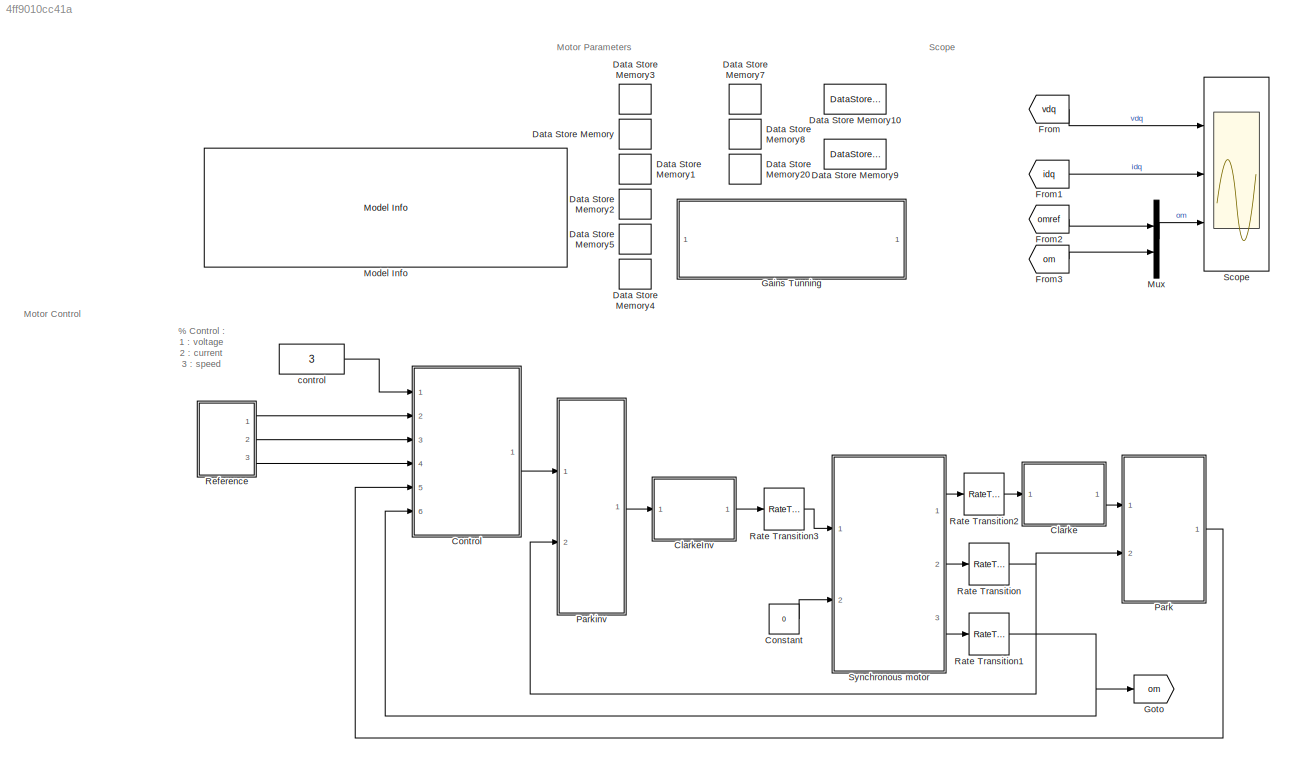
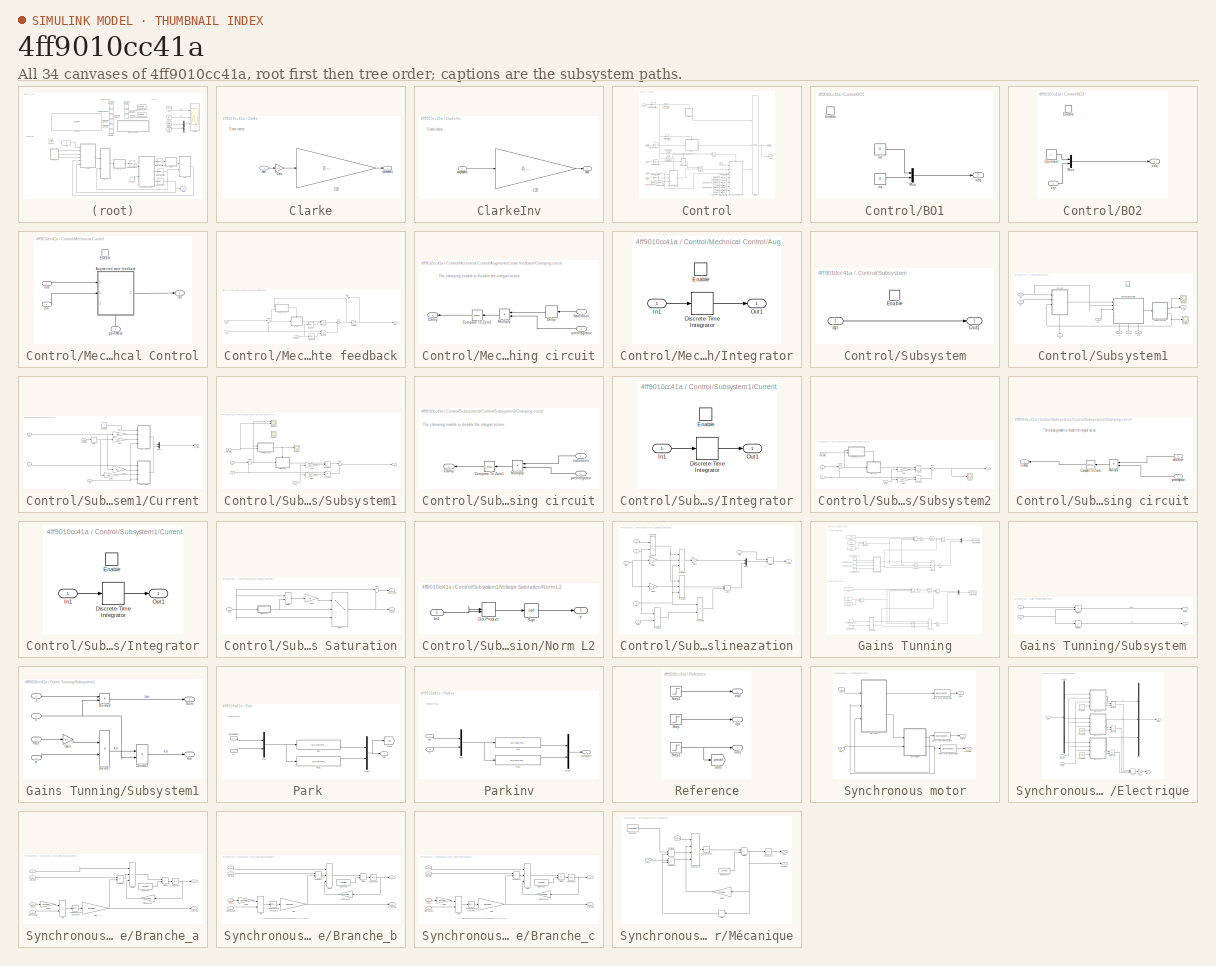
[diagram: thumbnail index - all 34 canvases of the model, root first then tree order]
MODEL slx_4ff9010cc41a
KIND model
CONFIG AbsTol = auto
CONFIG EnableMultiTasking = on
CONFIG FixedStep = 0.001
CONFIG MaxStep = 1e-4
CONFIG MinStep = auto
CONFIG RelTol = 1e-3
CONFIG SampleTimeConstraint = Unconstrained
CONFIG SolverName = ode45
CONFIG StartTime = 0.0
CONFIG StopTime = 10
BLOCK [SubSystem] Clarke
  Ports = [1, 1]
  RequestExecContextInheritance = off
BLOCK [Gain] Clarke/C23
  Gain = [1   -1/2        -1/2;\n        0   sqrt(3)/2   -sqrt(3)/2]
  Multiplication = Matrix(K*u)
BLOCK [Gain] Clarke/Gain
  Gain = 2/3
BLOCK [Inport] Clarke/xabc
BLOCK [Outport] Clarke/xalphabeta
  VectorParamsAs1DForOutWhenUnconnected = off
BLOCK [SubSystem] ClarkeInv
  Ports = [1, 1]
  RequestExecContextInheritance = off
BLOCK [Gain] ClarkeInv/C23'
  Gain = [1   -1/2        -1/2;\n        0   sqrt(3)/2   -sqrt(3)/2]'
  Multiplication = Matrix(K*u)
BLOCK [Outport] ClarkeInv/xabc
  VectorParamsAs1DForOutWhenUnconnected = off
BLOCK [Inport] ClarkeInv/xalphabeta
BLOCK [Constant] Constant
  Value = 0
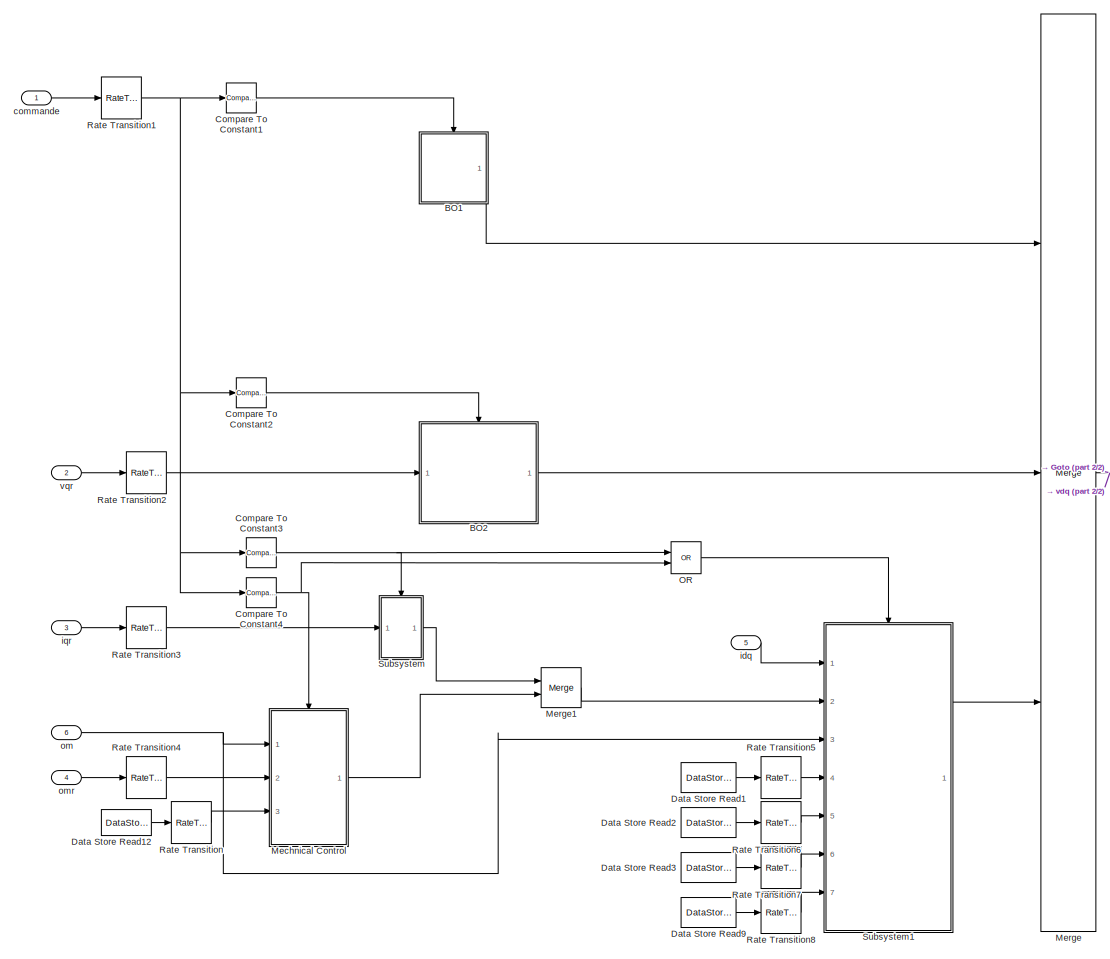
[diagram: Control - part 1/2, most of the canvas]
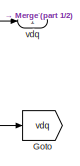
[diagram: Control - part 2/2, middle right region]
BLOCK [SubSystem] Control
  Ports = [6, 1]
  RequestExecContextInheritance = off
BLOCK [SubSystem] Control/BO1
  Ports = [0, 1, 1]
  RequestExecContextInheritance = off
BLOCK [EnablePort] Control/BO1/Enable
  Ports = []
BLOCK [Mux] Control/BO1/Mux
  DisplayOption = bar
  Inputs = 2
  Ports = [2, 1]
BLOCK [Constant] Control/BO1/vd
  OutDataTypeStr = single
  OutMax = [12]
  OutMin = [-12]
  Value = 0
BLOCK [Outport] Control/BO1/vdq
  VectorParamsAs1DForOutWhenUnconnected = off
BLOCK [Constant] Control/BO1/vq
  OutDataTypeStr = single
  OutMax = [12]
  OutMin = [-12]
  Value = 0
BLOCK [SubSystem] Control/BO2
  Ports = [1, 1, 1]
  RequestExecContextInheritance = off
BLOCK [Constant] Control/BO2/Constant
  OutDataTypeStr = single
  Value = 0
BLOCK [EnablePort] Control/BO2/Enable
  Ports = []
BLOCK [Mux] Control/BO2/Mux
  DisplayOption = bar
  Inputs = 2
  Ports = [2, 1]
BLOCK [Outport] Control/BO2/vdq
  VectorParamsAs1DForOutWhenUnconnected = off
BLOCK [Inport] Control/BO2/vqr
BLOCK [Reference] Control/Compare To Constant1  REF=simulink/Logic and Bit
Operations/Compare
To Constant
  Ports = [1, 1]
  SourceBlock = simulink/Logic and Bit\nOperations/Compare\nTo Constant
  SourceProductBaseCode = SL
  SourceType = Compare To Constant
BLOCK [Reference] Control/Compare To Constant2  REF=simulink/Logic and Bit
Operations/Compare
To Constant
  Ports = [1, 1]
  SourceBlock = simulink/Logic and Bit\nOperations/Compare\nTo Constant
  SourceProductBaseCode = SL
  SourceType = Compare To Constant
BLOCK [Reference] Control/Compare To Constant3  REF=simulink/Logic and Bit
Operations/Compare
To Constant
  Ports = [1, 1]
  SourceBlock = simulink/Logic and Bit\nOperations/Compare\nTo Constant
  SourceProductBaseCode = SL
  SourceType = Compare To Constant
BLOCK [Reference] Control/Compare To Constant4  REF=simulink/Logic and Bit
Operations/Compare
To Constant
  Ports = [1, 1]
  SourceBlock = simulink/Logic and Bit\nOperations/Compare\nTo Constant
  SourceProductBaseCode = SL
  SourceType = Compare To Constant
BLOCK [DataStoreRead] Control/Data Store Read1
  DataStoreName = L
  Ports = [0, 1]
  SampleTime = 1
BLOCK [DataStoreRead] Control/Data Store Read12
  DataStoreName = gainMeca
  Ports = [0, 1]
  SampleTime = 1
BLOCK [DataStoreRead] Control/Data Store Read2
  DataStoreName = Phif
  Ports = [0, 1]
  SampleTime = 1
BLOCK [DataStoreRead] Control/Data Store Read3
  DataStoreName = p
  Ports = [0, 1]
  SampleTime = 1
BLOCK [DataStoreRead] Control/Data Store Read9
  DataStoreName = gainElec
  Ports = [0, 1]
  SampleTime = 1
BLOCK [Goto] Control/Goto
  GotoTag = vdq
  TagVisibility = global
BLOCK [SubSystem] Control/Mechnical Control
  Ports = [3, 1, 1]
  RequestExecContextInheritance = off
BLOCK [SubSystem] Control/Mechnical Control/Augmented state feedback
  NameLocation = top
  PortSchema = {"entries":[{"content":{"sides":[{"content":{"connectorIds":["In1","In2"]},"type":"ConnectorPlacement.EquallySpacedRectSide","uuid":"89137e2f-cd18-4dcc-a524-9caf5367be1f"},{"content":{"connectorIds":["Out1"],"side":"RIGHT"},"type":"ConnectorPlacement.EquallySpacedRectSide","uuid":"4fa0fb61-d5d6-47b2-9e74-7b8a54a26f7d"},{"content":{"connectorIds":[],"side":"TOP"},"type":"ConnectorPlacement.EquallyS...<+539ch>
  Ports = [3, 1]
  RequestExecContextInheritance = off
BLOCK [SubSystem] Control/Mechnical Control/Augmented state feedback/Clamping circuit
  Ports = [2, 1]
  RequestExecContextInheritance = off
BLOCK [Outport] Control/Mechnical Control/Augmented state feedback/Clamping circuit/Clamp
  DisableCoverage = on
  VectorParamsAs1DForOutWhenUnconnected = off
BLOCK [Reference] Control/Mechnical Control/Augmented state feedback/Clamping circuit/Compare To Zero1  REF=simulink/Logic and Bit
Operations/Compare
To Zero
  NameLocation = top
  Ports = [1, 1]
  SourceBlock = simulink/Logic and Bit\nOperations/Compare\nTo Zero
  SourceProductBaseCode = SL
  SourceType = Compare To Zero
BLOCK [Delay] Control/Mechnical Control/Augmented state feedback/Clamping circuit/Delay
  DelayLength = 1
  InitialCondition = 0
  InputPortMap = u0
  NameLocation = top
  Ports = [1, 1]
BLOCK [Product] Control/Mechnical Control/Augmented state feedback/Clamping circuit/Multiply
  NameLocation = top
  Ports = [2, 1]
BLOCK [Inport] Control/Mechnical Control/Augmented state feedback/Clamping circuit/Saturation
  DisableCoverage = on
BLOCK [Inport] Control/Mechnical Control/Augmented state feedback/Clamping circuit/preIntegrator
  DisableCoverage = on
  Port = 2
  VarSizeSig = No
BLOCK [SubSystem] Control/Mechnical Control/Augmented state feedback/Integrator
  Ports = [1, 1, 1]
  RequestExecContextInheritance = off
BLOCK [DiscreteIntegrator] Control/Mechnical Control/Augmented state feedback/Integrator/Discrete-Time Integrator
  ICPrevOutput = DiscIntNeverNeededParam
  ICPrevScaledInput = DiscIntNeverNeededParam
  InitialConditionSetting = Auto
  OutDataTypeStr = single
  Ports = [1, 1]
  SampleTime = 1e-4
  SaturateOnIntegerOverflow = on
BLOCK [EnablePort] Control/Mechnical Control/Augmented state feedback/Integrator/Enable
  Ports = []
BLOCK [Inport] Control/Mechnical Control/Augmented state feedback/Integrator/In1
BLOCK [Outport] Control/Mechnical Control/Augmented state feedback/Integrator/Out1
  VectorParamsAs1DForOutWhenUnconnected = off
BLOCK [Product] Control/Mechnical Control/Augmented state feedback/Product
  Ports = [2, 1]
BLOCK [Product] Control/Mechnical Control/Augmented state feedback/Product1
  Ports = [2, 1]
BLOCK [Saturate] Control/Mechnical Control/Augmented state feedback/Saturation
  LowerLimit = -4
  UpperLimit = 4
BLOCK [Selector] Control/Mechnical Control/Augmented state feedback/Selector
  IndexOptions = Index vector (dialog)
  Indices = [2]
  InputPortWidth = 2
  OutputSizes = 1
  Ports = [1, 1]
BLOCK [Selector] Control/Mechnical Control/Augmented state feedback/Selector1
  IndexOptions = Index vector (dialog)
  Indices = 1
  InputPortWidth = 2
  OutputSizes = 1
  Ports = [1, 1]
BLOCK [Sum] Control/Mechnical Control/Augmented state feedback/Sum
  Inputs = |--
  OutDataTypeStr = single
  Ports = [2, 1]
  SaturateOnIntegerOverflow = on
BLOCK [Sum] Control/Mechnical Control/Augmented state feedback/Sum1
  Inputs = |+-
  Ports = [2, 1]
BLOCK [Sum] Control/Mechnical Control/Augmented state feedback/Sum2
  AccumDataTypeStr = Inherit: Same as first input
  Inputs = |-+
  NameLocation = top
  OutDataTypeStr = Inherit: Same as accumulator
  Ports = [2, 1]
  SaturateOnIntegerOverflow = on
BLOCK [Inport] Control/Mechnical Control/Augmented state feedback/gainMeca
  Port = 3
BLOCK [Outport] Control/Mechnical Control/Augmented state feedback/iqref
  VectorParamsAs1DForOutWhenUnconnected = off
BLOCK [Inport] Control/Mechnical Control/Augmented state feedback/om
  Port = 2
BLOCK [Inport] Control/Mechnical Control/Augmented state feedback/omref
BLOCK [EnablePort] Control/Mechnical Control/Enable
  Ports = []
  StatesWhenEnabling = reset
BLOCK [Inport] Control/Mechnical Control/gainMeca
  NameLocation = right
  Port = 3
BLOCK [Outport] Control/Mechnical Control/iqr
  VectorParamsAs1DForOutWhenUnconnected = off
BLOCK [Inport] Control/Mechnical Control/om
BLOCK [Inport] Control/Mechnical Control/omr
  Port = 2
BLOCK [Merge] Control/Merge
  Inputs = 3
  Ports = [3, 1]
BLOCK [Merge] Control/Merge1
  Ports = [2, 1]
BLOCK [Logic] Control/OR
  AllPortsSameDT = off
  IconShape = distinctive
  Operator = OR
  OutDataTypeStr = boolean
  Ports = [2, 1]
BLOCK [RateTransition] Control/Rate Transition
BLOCK [RateTransition] Control/Rate Transition1
BLOCK [RateTransition] Control/Rate Transition2
BLOCK [RateTransition] Control/Rate Transition3
BLOCK [RateTransition] Control/Rate Transition4
BLOCK [RateTransition] Control/Rate Transition5
BLOCK [RateTransition] Control/Rate Transition6
BLOCK [RateTransition] Control/Rate Transition7
BLOCK [RateTransition] Control/Rate Transition8
BLOCK [SubSystem] Control/Subsystem
  Ports = [1, 1, 1]
  RequestExecContextInheritance = off
BLOCK [EnablePort] Control/Subsystem/Enable
  Ports = []
BLOCK [Outport] Control/Subsystem/Out1
BLOCK [Inport] Control/Subsystem/iqr
BLOCK [SubSystem] Control/Subsystem1
  Ports = [7, 1, 1]
  RequestExecContextInheritance = off
BLOCK [SubSystem] Control/Subsystem1/Current
  NameLocation = top
  PortSchema = {"entries":[{"content":{"sides":[{"content":{"connectorIds":["In1","In2","In3"]},"type":"ConnectorPlacement.EquallySpacedRectSide","uuid":"0dd1bd5c-4f2d-4a51-9bc2-8bf74640d4ff"},{"content":{"connectorIds":["Out1"],"side":"RIGHT"},"type":"ConnectorPlacement.EquallySpacedRectSide","uuid":"9ff54608-efe8-47a2-97c0-1c2807ae0451"},{"content":{"connectorIds":[],"side":"TOP"},"type":"ConnectorPlacement.Eq...<+545ch>
  Ports = [4, 1]
  RequestExecContextInheritance = off
BLOCK [Constant] Control/Subsystem1/Current/Constant
  Value = 0
BLOCK [Delay] Control/Subsystem1/Current/Delay
  DelayLength = 1
  InputPortMap = u0
  Ports = [1, 1]
BLOCK [Gain] Control/Subsystem1/Current/Gain1
  Gain = [1 0]
  Multiplication = Matrix(K*u)
  OutDataTypeStr = Inherit: Same as input
BLOCK [Gain] Control/Subsystem1/Current/Gain2
  Gain = [0 1]
  Multiplication = Matrix(K*u)
  OutDataTypeStr = Inherit: Same as input
BLOCK [Gain] Control/Subsystem1/Current/Gain3
  Gain = [1 0]
  Multiplication = Matrix(K*u)
  OutDataTypeStr = Inherit: Same as input
BLOCK [Gain] Control/Subsystem1/Current/Gain4
  Gain = [0 1]
  Multiplication = Matrix(K*u)
  OutDataTypeStr = Inherit: Same as input
BLOCK [Inport] Control/Subsystem1/Current/Ke
  Port = 4
BLOCK [Mux] Control/Subsystem1/Current/Mux1
  DisplayOption = bar
  Inputs = 2
  Ports = [2, 1]
BLOCK [SubSystem] Control/Subsystem1/Current/Subsystem1
  Ports = [4, 1]
  RequestExecContextInheritance = off
BLOCK [SubSystem] Control/Subsystem1/Current/Subsystem1/Clamping circuit
  Ports = [2, 1]
  RequestExecContextInheritance = off
BLOCK [Outport] Control/Subsystem1/Current/Subsystem1/Clamping circuit/Clamp
  DisableCoverage = on
  VectorParamsAs1DForOutWhenUnconnected = off
BLOCK [Reference] Control/Subsystem1/Current/Subsystem1/Clamping circuit/Compare To Zero1  REF=simulink/Logic and Bit
Operations/Compare
To Zero
  NameLocation = top
  Ports = [1, 1]
  SourceBlock = simulink/Logic and Bit\nOperations/Compare\nTo Zero
  SourceProductBaseCode = SL
  SourceType = Compare To Zero
BLOCK [Product] Control/Subsystem1/Current/Subsystem1/Clamping circuit/Multiply
  NameLocation = top
  Ports = [2, 1]
BLOCK [Inport] Control/Subsystem1/Current/Subsystem1/Clamping circuit/preIntegrator
  DisableCoverage = on
  VarSizeSig = No
BLOCK [Inport] Control/Subsystem1/Current/Subsystem1/Clamping circuit/saturation
  DisableCoverage = on
  Port = 2
BLOCK [Gain] Control/Subsystem1/Current/Subsystem1/Gain
  Gain = [0 1]
  Multiplication = Matrix(K*u)
BLOCK [Gain] Control/Subsystem1/Current/Subsystem1/Gain1
  Gain = [1 0]
  Multiplication = Matrix(K*u)
BLOCK [SubSystem] Control/Subsystem1/Current/Subsystem1/Integrator
  Ports = [1, 1, 1]
  RequestExecContextInheritance = off
BLOCK [DiscreteIntegrator] Control/Subsystem1/Current/Subsystem1/Integrator/Discrete-Time Integrator
  ICPrevOutput = DiscIntNeverNeededParam
  ICPrevScaledInput = DiscIntNeverNeededParam
  InitialConditionSetting = Auto
  OutDataTypeStr = single
  Ports = [1, 1]
  SampleTime = 1e-4
BLOCK [EnablePort] Control/Subsystem1/Current/Subsystem1/Integrator/Enable
  Ports = []
BLOCK [Inport] Control/Subsystem1/Current/Subsystem1/Integrator/In1
BLOCK [Outport] Control/Subsystem1/Current/Subsystem1/Integrator/Out1
  VectorParamsAs1DForOutWhenUnconnected = off
BLOCK [Inport] Control/Subsystem1/Current/Subsystem1/K_e
  Port = 4
BLOCK [Product] Control/Subsystem1/Current/Subsystem1/Product
  Ports = [2, 1]
BLOCK [Product] Control/Subsystem1/Current/Subsystem1/Product1
  Ports = [2, 1]
BLOCK [Scope] Control/Subsystem1/Current/Subsystem1/Scope
  Floating = off
  NumInputPorts = 1
  Ports = [1]
  ScopeSpecificationString = Simulink.scopes.TimeScopeBlockCfg('CurrentConfiguration', extmgr.ConfigurationSet(extmgr.Configuration('Core','General UI',true),extmgr.Configuration('Core','Source UI',true),extmgr.Configuration('Sources','WiredSimulink',true,'DataLoggingVariableName','ScopeData5'),extmgr.Configuration('Visuals','Time Domain',true,'SerializedDisplays',{struct('MinYLimReal','-0.125','MaxYLimReal','1.125','YLabelRe...<+1391ch>
BLOCK [Scope] Control/Subsystem1/Current/Subsystem1/Scope1
  Floating = off
  NumInputPorts = 2
  Ports = [2]
  ScopeSpecificationString = Simulink.scopes.TimeScopeBlockCfg('CurrentConfiguration', extmgr.ConfigurationSet(extmgr.Configuration('Core','General UI',true),extmgr.Configuration('Core','Source UI',true),extmgr.Configuration('Sources','WiredSimulink',true,'DataLoggingVariableName','ScopeData3'),extmgr.Configuration('Visuals','Time Domain',true,'SerializedDisplays',{struct('MinYLimReal','-0.125','MaxYLimReal','1.125','YLabelRe...<+1394ch>
BLOCK [Scope] Control/Subsystem1/Current/Subsystem1/Scope2
  Floating = off
  NumInputPorts = 1
  Ports = [1]
  ScopeSpecificationString = Simulink.scopes.TimeScopeBlockCfg('CurrentConfiguration', extmgr.ConfigurationSet(extmgr.Configuration('Core','General UI',true),extmgr.Configuration('Core','Source UI',true),extmgr.Configuration('Sources','WiredSimulink',true,'DataLoggingVariableName','ScopeData4'),extmgr.Configuration('Visuals','Time Domain',true,'SerializedDisplays',{struct('MinYLimReal','-1.00000','MaxYLimReal','1.00000','YLab...<+1432ch>
BLOCK [Sum] Control/Subsystem1/Current/Subsystem1/Sum
  Inputs = |--
  OutDataTypeStr = single
  Ports = [2, 1]
  SaturateOnIntegerOverflow = on
BLOCK [Sum] Control/Subsystem1/Current/Subsystem1/Sum3
  Inputs = |+-
  Ports = [2, 1]
BLOCK [Inport] Control/Subsystem1/Current/Subsystem1/i
  Port = 2
BLOCK [Inport] Control/Subsystem1/Current/Subsystem1/iref
BLOCK [Inport] Control/Subsystem1/Current/Subsystem1/saturation
  Port = 3
BLOCK [Outport] Control/Subsystem1/Current/Subsystem1/v
  VectorParamsAs1DForOutWhenUnconnected = off
BLOCK [SubSystem] Control/Subsystem1/Current/Subsystem2
  Ports = [4, 1]
  RequestExecContextInheritance = off
BLOCK [SubSystem] Control/Subsystem1/Current/Subsystem2/Clamping circuit
  Ports = [2, 1]
  RequestExecContextInheritance = off
BLOCK [Outport] Control/Subsystem1/Current/Subsystem2/Clamping circuit/Clamp
  DisableCoverage = on
  VectorParamsAs1DForOutWhenUnconnected = off
BLOCK [Reference] Control/Subsystem1/Current/Subsystem2/Clamping circuit/Compare To Zero1  REF=simulink/Logic and Bit
Operations/Compare
To Zero
  NameLocation = top
  Ports = [1, 1]
  SourceBlock = simulink/Logic and Bit\nOperations/Compare\nTo Zero
  SourceProductBaseCode = SL
  SourceType = Compare To Zero
BLOCK [Product] Control/Subsystem1/Current/Subsystem2/Clamping circuit/Multiply
  NameLocation = top
  Ports = [2, 1]
BLOCK [Inport] Control/Subsystem1/Current/Subsystem2/Clamping circuit/preIntegrator
  DisableCoverage = on
  VarSizeSig = No
BLOCK [Inport] Control/Subsystem1/Current/Subsystem2/Clamping circuit/saturation
  DisableCoverage = on
  Port = 2
BLOCK [Gain] Control/Subsystem1/Current/Subsystem2/Gain
  Gain = [0 1]
  Multiplication = Matrix(K*u)
BLOCK [Gain] Control/Subsystem1/Current/Subsystem2/Gain1
  Gain = [1 0]
  Multiplication = Matrix(K*u)
BLOCK [SubSystem] Control/Subsystem1/Current/Subsystem2/Integrator
  Ports = [1, 1, 1]
  RequestExecContextInheritance = off
BLOCK [DiscreteIntegrator] Control/Subsystem1/Current/Subsystem2/Integrator/Discrete-Time Integrator
  ICPrevOutput = DiscIntNeverNeededParam
  ICPrevScaledInput = DiscIntNeverNeededParam
  InitialConditionSetting = Auto
  OutDataTypeStr = single
  Ports = [1, 1]
  SampleTime = 1e-4
BLOCK [EnablePort] Control/Subsystem1/Current/Subsystem2/Integrator/Enable
  Ports = []
BLOCK [Inport] Control/Subsystem1/Current/Subsystem2/Integrator/In1
BLOCK [Outport] Control/Subsystem1/Current/Subsystem2/Integrator/Out1
  VectorParamsAs1DForOutWhenUnconnected = off
BLOCK [Inport] Control/Subsystem1/Current/Subsystem2/K_e
  Port = 4
BLOCK [Product] Control/Subsystem1/Current/Subsystem2/Product
  Ports = [2, 1]
BLOCK [Product] Control/Subsystem1/Current/Subsystem2/Product1
  Ports = [2, 1]
BLOCK [Scope] Control/Subsystem1/Current/Subsystem2/Scope
  Floating = off
  NumInputPorts = 1
  Ports = [1]
  ScopeSpecificationString = Simulink.scopes.TimeScopeBlockCfg('CurrentConfiguration', extmgr.ConfigurationSet(extmgr.Configuration('Core','General UI',true),extmgr.Configuration('Core','Source UI',true),extmgr.Configuration('Sources','WiredSimulink',true,'DataLoggingVariableName','ScopeData2'),extmgr.Configuration('Visuals','Time Domain',true,'SerializedDisplays',{struct('MinYLimReal','-2.81143','MaxYLimReal','9.99619','YLab...<+1362ch>
BLOCK [Sum] Control/Subsystem1/Current/Subsystem2/Sum
  Inputs = |--
  OutDataTypeStr = single
  Ports = [2, 1]
  SaturateOnIntegerOverflow = on
BLOCK [Sum] Control/Subsystem1/Current/Subsystem2/Sum3
  Inputs = |+-
  Ports = [2, 1]
BLOCK [Inport] Control/Subsystem1/Current/Subsystem2/i
  Port = 2
BLOCK [Inport] Control/Subsystem1/Current/Subsystem2/iref
BLOCK [Inport] Control/Subsystem1/Current/Subsystem2/saturation
  Port = 3
BLOCK [Outport] Control/Subsystem1/Current/Subsystem2/v
  VectorParamsAs1DForOutWhenUnconnected = off
BLOCK [Inport] Control/Subsystem1/Current/idq
BLOCK [Inport] Control/Subsystem1/Current/iqr
  Port = 2
BLOCK [Inport] Control/Subsystem1/Current/saturation
  Port = 3
BLOCK [Outport] Control/Subsystem1/Current/v_dq
  VectorParamsAs1DForOutWhenUnconnected = off
BLOCK [EnablePort] Control/Subsystem1/Enable
  Ports = []
  StatesWhenEnabling = reset
BLOCK [Inport] Control/Subsystem1/Ke
  NameLocation = right
  Port = 7
BLOCK [Inport] Control/Subsystem1/L
  NameLocation = right
  Port = 4
BLOCK [Inport] Control/Subsystem1/Phif
  NameLocation = right
  Port = 5
BLOCK [Scope] Control/Subsystem1/Scope
  Floating = off
  NumInputPorts = 1
  Ports = [1]
  ScopeSpecificationString = Simulink.scopes.TimeScopeBlockCfg('CurrentConfiguration', extmgr.ConfigurationSet(extmgr.Configuration('Core','General UI',true),extmgr.Configuration('Core','Source UI',true),extmgr.Configuration('Sources','WiredSimulink',true,'DataLoggingVariableName','ScopeData3'),extmgr.Configuration('Visuals','Time Domain',true,'SerializedDisplays',{struct('MinYLimReal','-0.02877','MaxYLimReal','0.25896','YLab...<+1435ch>
BLOCK [Scope] Control/Subsystem1/Scope1
  Floating = off
  NumInputPorts = 1
  Ports = [1]
  ScopeSpecificationString = Simulink.scopes.TimeScopeBlockCfg('CurrentConfiguration', extmgr.ConfigurationSet(extmgr.Configuration('Core','General UI',true),extmgr.Configuration('Core','Source UI',true),extmgr.Configuration('Sources','WiredSimulink',true,'DataLoggingVariableName','ScopeData4'),extmgr.Configuration('Visuals','Time Domain',true,'SerializedDisplays',{struct('MinYLimReal','-1.09402','MaxYLimReal','6.46965','YLab...<+1461ch>
BLOCK [SubSystem] Control/Subsystem1/Voltage Saturation
  Ports = [1, 2]
  RequestExecContextInheritance = off
BLOCK [Product] Control/Subsystem1/Voltage Saturation/Divide
  Inputs = */
  Ports = [2, 1]
BLOCK [Gain] Control/Subsystem1/Voltage Saturation/Gain
  Gain = 12
BLOCK [SubSystem] Control/Subsystem1/Voltage Saturation/Norm L2
  Ports = [1, 1]
  RequestExecContextInheritance = off
BLOCK [DotProduct] Control/Subsystem1/Voltage Saturation/Norm L2/Dot Product
  OutDataTypeStr = Inherit: Inherit via internal rule
BLOCK [Inport] Control/Subsystem1/Voltage Saturation/Norm L2/In1
BLOCK [Sqrt] Control/Subsystem1/Voltage Saturation/Norm L2/Sqrt
BLOCK [Outport] Control/Subsystem1/Voltage Saturation/Norm L2/y
BLOCK [Sum] Control/Subsystem1/Voltage Saturation/Sum
  Inputs = |+-
  Ports = [2, 1]
BLOCK [Switch] Control/Subsystem1/Voltage Saturation/Switch
  Criteria = u2 > Threshold
  InputSameDT = off
  SaturateOnIntegerOverflow = off
  Threshold = 12
BLOCK [Outport] Control/Subsystem1/Voltage Saturation/saturation
  Port = 2
  VectorParamsAs1DForOutWhenUnconnected = off
BLOCK [Inport] Control/Subsystem1/Voltage Saturation/vdq
BLOCK [Outport] Control/Subsystem1/Voltage Saturation/vdqsat
  VectorParamsAs1DForOutWhenUnconnected = off
BLOCK [SubSystem] Control/Subsystem1/feedback lineazation
  NameLocation = top
  PortSchema = {"entries":[{"content":{"sides":[{"content":{"connectorIds":["In1","In2","In3"]},"type":"ConnectorPlacement.EquallySpacedRectSide","uuid":"169b5321-ee7c-423e-8449-192a786c9798"},{"content":{"connectorIds":["Out1"],"side":"RIGHT"},"type":"ConnectorPlacement.EquallySpacedRectSide","uuid":"910fdd05-0903-4759-8f85-a6669ffcf15d"},{"content":{"connectorIds":[],"side":"TOP"},"type":"ConnectorPlacement.Eq...<+557ch>
  Ports = [6, 1]
  RequestExecContextInheritance = off
BLOCK [Sum] Control/Subsystem1/feedback lineazation/Add6
  IconShape = rectangular
  Ports = [2, 1]
BLOCK [Sum] Control/Subsystem1/feedback lineazation/Add7
  IconShape = rectangular
  Ports = [2, 1]
BLOCK [Gain] Control/Subsystem1/feedback lineazation/Gain1
  Gain = -1
BLOCK [Gain] Control/Subsystem1/feedback lineazation/Gain2
  Gain = [1 0]
  Multiplication = Matrix(K*u)
BLOCK [Gain] Control/Subsystem1/feedback lineazation/Gain3
  Gain = [0 1]
  Multiplication = Matrix(K*u)
BLOCK [Inport] Control/Subsystem1/feedback lineazation/L
  Port = 5
BLOCK [Mux] Control/Subsystem1/feedback lineazation/Mux2
  DisplayOption = bar
  Inputs = 2
  Ports = [2, 1]
BLOCK [Inport] Control/Subsystem1/feedback lineazation/Phif
  Port = 6
BLOCK [Product] Control/Subsystem1/feedback lineazation/Product2
  Ports = [2, 1]
BLOCK [Product] Control/Subsystem1/feedback lineazation/Product3
  Ports = [2, 1]
BLOCK [Product] Control/Subsystem1/feedback lineazation/Product7
  Inputs = 3
  Ports = [3, 1]
BLOCK [Product] Control/Subsystem1/feedback lineazation/Product8
  Ports = [2, 1]
BLOCK [Product] Control/Subsystem1/feedback lineazation/Product9
  Inputs = 3
  Ports = [3, 1]
BLOCK [Inport] Control/Subsystem1/feedback lineazation/idq
  NameLocation = top
  Port = 2
BLOCK [Inport] Control/Subsystem1/feedback lineazation/om
  Port = 3
BLOCK [Inport] Control/Subsystem1/feedback lineazation/p
  Port = 4
BLOCK [Inport] Control/Subsystem1/feedback lineazation/udq
BLOCK [Outport] Control/Subsystem1/feedback lineazation/v_dq
  VectorParamsAs1DForOutWhenUnconnected = off
BLOCK [Inport] Control/Subsystem1/idq
BLOCK [Inport] Control/Subsystem1/iqr
  Port = 2
BLOCK [Inport] Control/Subsystem1/om
  Port = 3
BLOCK [Inport] Control/Subsystem1/p
  NameLocation = right
  Port = 6
BLOCK [Outport] Control/Subsystem1/v_dq
BLOCK [Inport] Control/commande
BLOCK [Inport] Control/idq
  Port = 5
BLOCK [Inport] Control/iqr
  Port = 3
BLOCK [Inport] Control/om
  Port = 6
BLOCK [Inport] Control/omr
  Port = 4
BLOCK [Outport] Control/vdq
  VectorParamsAs1DForOutWhenUnconnected = off
BLOCK [Inport] Control/vqr
  Port = 2
BLOCK [DataStoreMemory] Data Store Memory
  DataStoreName = R
  InitialValue = 0.656
  OutDataTypeStr = single
  ReadBeforeWriteMsg = warning
  ShowAdditionalParam = off
  WriteAfterReadMsg = warning
  WriteAfterWriteMsg = warning
BLOCK [DataStoreMemory] Data Store Memory1
  DataStoreName = L
  InitialValue = 0.35e-3
  OutDataTypeStr = single
  ReadBeforeWriteMsg = warning
  ShowAdditionalParam = off
  WriteAfterReadMsg = warning
  WriteAfterWriteMsg = warning
BLOCK [DataStoreMemory] Data Store Memory10
  DataStoreName = gainElec
  InitialValue = [0;0]
  OutDataTypeStr = single
  ReadBeforeWriteMsg = warning
  ShowAdditionalParam = off
  WriteAfterReadMsg = warning
  WriteAfterWriteMsg = warning
BLOCK [DataStoreMemory] Data Store Memory2
  DataStoreName = Phif
  InitialValue = 0.0066
  OutDataTypeStr = single
  ReadBeforeWriteMsg = warning
  ShowAdditionalParam = off
  WriteAfterReadMsg = warning
  WriteAfterWriteMsg = warning
BLOCK [DataStoreMemory] Data Store Memory20
  DataStoreName = IMAX
  InitialValue = 4
  OutDataTypeStr = int16
  ReadBeforeWriteMsg = warning
  ShowAdditionalParam = off
  WriteAfterReadMsg = warning
  WriteAfterWriteMsg = warning
BLOCK [DataStoreMemory] Data Store Memory3
  DataStoreName = p
  InitialValue = 4
  OutDataTypeStr = int16
  ReadBeforeWriteMsg = warning
  ShowAdditionalParam = off
  WriteAfterReadMsg = warning
  WriteAfterWriteMsg = warning
BLOCK [DataStoreMemory] Data Store Memory4
  DataStoreName = F
  InitialValue = 1.0e-05
  OutDataTypeStr = single
  ReadBeforeWriteMsg = warning
  ShowAdditionalParam = off
  WriteAfterReadMsg = warning
  WriteAfterWriteMsg = warning
BLOCK [DataStoreMemory] Data Store Memory5
  DataStoreName = J
  InitialValue = 1.0e-05
  OutDataTypeStr = single
  ReadBeforeWriteMsg = warning
  ShowAdditionalParam = off
  WriteAfterReadMsg = warning
  WriteAfterWriteMsg = warning
BLOCK [DataStoreMemory] Data Store Memory7
  DataStoreName = VDC
  InitialValue = 24
  OutDataTypeStr = fixdt(1,16)
  OutMax = [30]
  OutMin = [-30]
  ReadBeforeWriteMsg = warning
  ShowAdditionalParam = off
  WriteAfterReadMsg = warning
  WriteAfterWriteMsg = warning
BLOCK [DataStoreMemory] Data Store Memory8
  DataStoreName = VMAX
  InitialValue = 12
  OutDataTypeStr = fixdt(1,16)
  OutMax = [30]
  OutMin = [-30]
  ReadBeforeWriteMsg = warning
  ShowAdditionalParam = off
  WriteAfterReadMsg = warning
  WriteAfterWriteMsg = warning
BLOCK [DataStoreMemory] Data Store Memory9
  DataStoreName = gainMeca
  InitialValue = [0;0]
  OutDataTypeStr = single
  ReadBeforeWriteMsg = warning
  ShowAdditionalParam = off
  WriteAfterReadMsg = warning
  WriteAfterWriteMsg = warning
BLOCK [From] From
  GotoTag = vdq
  TagVisibility = global
BLOCK [From] From1
  GotoTag = idq
  TagVisibility = global
BLOCK [From] From2
  GotoTag = omref
  TagVisibility = global
BLOCK [From] From3
  GotoTag = om
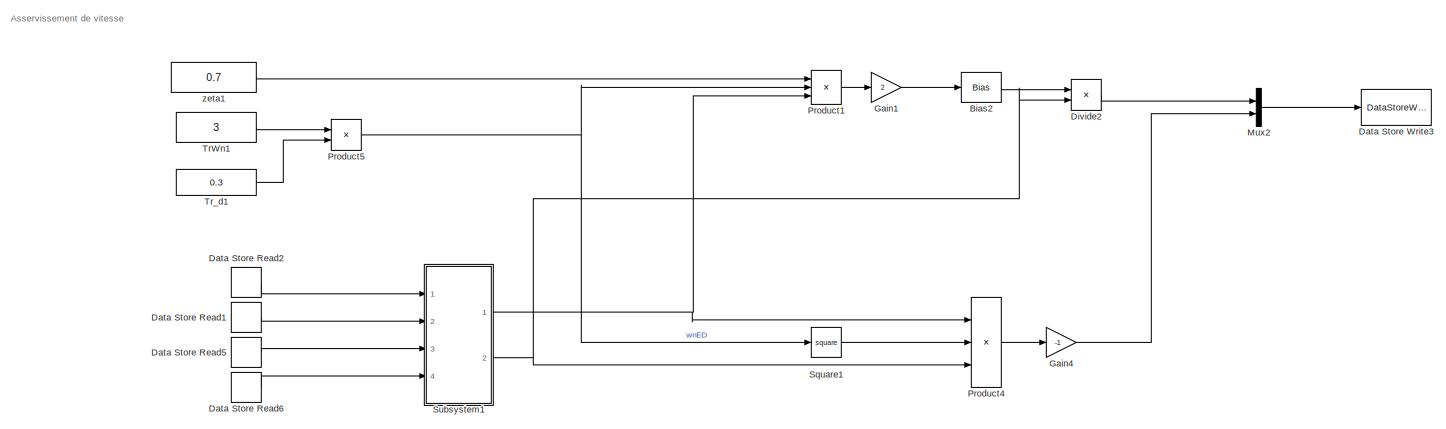
[diagram: Gains Tunning - part 1/2, full width, top band]
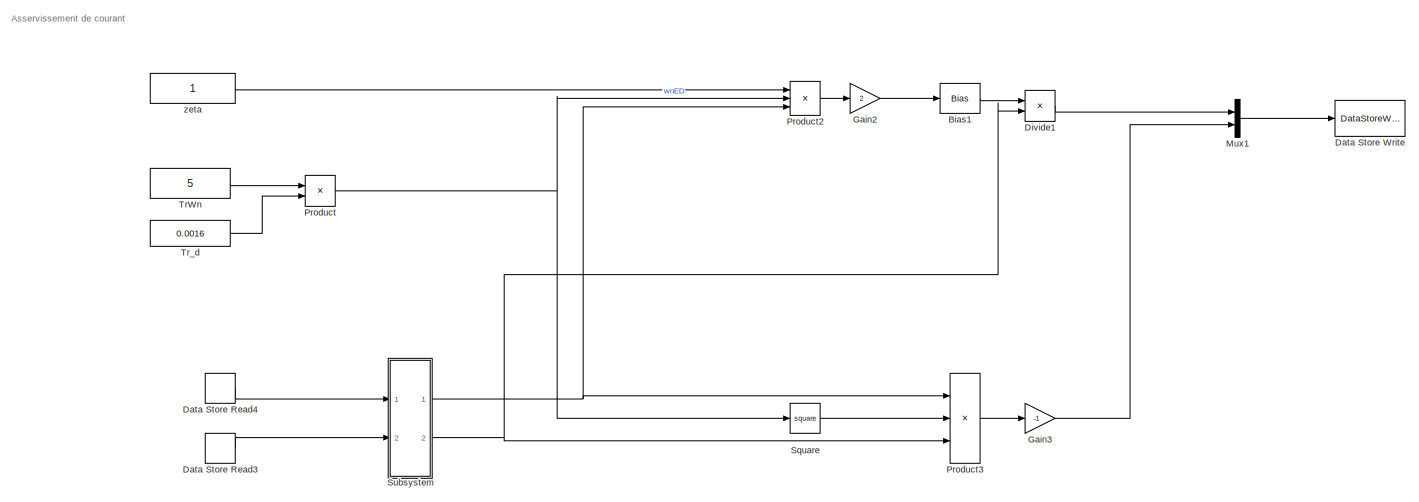
[diagram: Gains Tunning - part 2/2, full width, bottom band]
BLOCK [SubSystem] Gains Tunning
  Ports = []
  RequestExecContextInheritance = off
BLOCK [Bias] Gains Tunning/Bias1
  Bias = -1
  SaturateOnIntegerOverflow = off
BLOCK [Bias] Gains Tunning/Bias2
  Bias = -1
  SaturateOnIntegerOverflow = off
BLOCK [DataStoreRead] Gains Tunning/Data Store Read1
  DataStoreName = F
  Ports = [0, 1]
  SampleTime = 1
BLOCK [DataStoreRead] Gains Tunning/Data Store Read2
  DataStoreName = J
  Ports = [0, 1]
  SampleTime = 1
BLOCK [DataStoreRead] Gains Tunning/Data Store Read3
  DataStoreName = R
  Ports = [0, 1]
  SampleTime = 1
BLOCK [DataStoreRead] Gains Tunning/Data Store Read4
  DataStoreName = L
  Ports = [0, 1]
  SampleTime = 1
BLOCK [DataStoreRead] Gains Tunning/Data Store Read5
  DataStoreName = Phif
  Ports = [0, 1]
  SampleTime = 1
BLOCK [DataStoreRead] Gains Tunning/Data Store Read6
  DataStoreName = p
  Ports = [0, 1]
  SampleTime = 1
BLOCK [DataStoreWrite] Gains Tunning/Data Store Write
  DataStoreName = gainElec
  Ports = [1]
  SampleTime = 1
BLOCK [DataStoreWrite] Gains Tunning/Data Store Write3
  DataStoreName = gainMeca
  Ports = [1]
BLOCK [Product] Gains Tunning/Divide1
  Inputs = */
  Ports = [2, 1]
BLOCK [Product] Gains Tunning/Divide2
  Inputs = */
  Ports = [2, 1]
BLOCK [Gain] Gains Tunning/Gain1
  Gain = 2
BLOCK [Gain] Gains Tunning/Gain2
  Gain = 2
BLOCK [Gain] Gains Tunning/Gain3
  Gain = -1
BLOCK [Gain] Gains Tunning/Gain4
  Gain = -1
BLOCK [Mux] Gains Tunning/Mux1
  DisplayOption = bar
  Inputs = 2
  Ports = [2, 1]
BLOCK [Mux] Gains Tunning/Mux2
  DisplayOption = bar
  Inputs = 2
  Ports = [2, 1]
BLOCK [Product] Gains Tunning/Product
  Inputs = */
  Ports = [2, 1]
BLOCK [Product] Gains Tunning/Product1
  Inputs = 3
  Ports = [3, 1]
BLOCK [Product] Gains Tunning/Product2
  Inputs = 3
  Ports = [3, 1]
BLOCK [Product] Gains Tunning/Product3
  Inputs = **/
  Ports = [3, 1]
BLOCK [Product] Gains Tunning/Product4
  Inputs = **/
  Ports = [3, 1]
BLOCK [Product] Gains Tunning/Product5
  Inputs = */
  Ports = [2, 1]
BLOCK [Math] Gains Tunning/Square
  Operator = square
  Ports = [1, 1]
BLOCK [Math] Gains Tunning/Square1
  Operator = square
  Ports = [1, 1]
BLOCK [SubSystem] Gains Tunning/Subsystem
  Ports = [2, 2]
  RequestExecContextInheritance = off
BLOCK [Product] Gains Tunning/Subsystem/Divide1
  Inputs = /
  Ports = [1, 1]
BLOCK [Product] Gains Tunning/Subsystem/Divide2
  Inputs = */
  Ports = [2, 1]
BLOCK [Inport] Gains Tunning/Subsystem/L
BLOCK [Inport] Gains Tunning/Subsystem/R
  Port = 2
BLOCK [Outport] Gains Tunning/Subsystem/kE
  Port = 2
BLOCK [Outport] Gains Tunning/Subsystem/tauE
BLOCK [SubSystem] Gains Tunning/Subsystem1
  Ports = [4, 2]
  RequestExecContextInheritance = off
BLOCK [Product] Gains Tunning/Subsystem1/Divide3
  Inputs = */
  Ports = [2, 1]
BLOCK [Product] Gains Tunning/Subsystem1/Divide6
  Inputs = */
  Ports = [2, 1]
BLOCK [Product] Gains Tunning/Subsystem1/Divide7
  Inputs = **
  Ports = [2, 1]
BLOCK [Inport] Gains Tunning/Subsystem1/F
  Port = 2
BLOCK [Gain] Gains Tunning/Subsystem1/Gain
  Gain = 3/2
BLOCK [Inport] Gains Tunning/Subsystem1/J
BLOCK [Outport] Gains Tunning/Subsystem1/Km
  Port = 2
BLOCK [Inport] Gains Tunning/Subsystem1/Phif
  Port = 3
BLOCK [Inport] Gains Tunning/Subsystem1/p
  Port = 4
BLOCK [Outport] Gains Tunning/Subsystem1/taum
BLOCK [Constant] Gains Tunning/TrWn
  OutDataTypeStr = single
  Value = 5
BLOCK [Constant] Gains Tunning/TrWn1
  OutDataTypeStr = single
  Value = 3
BLOCK [Constant] Gains Tunning/Tr_d
  OutDataTypeStr = single
  Value = 0.0016
BLOCK [Constant] Gains Tunning/Tr_d1
  OutDataTypeStr = single
  Value = 0.3
BLOCK [Constant] Gains Tunning/zeta
  OutDataTypeStr = single
BLOCK [Constant] Gains Tunning/zeta1
  OutDataTypeStr = single
  Value = 0.7
BLOCK [Goto] Goto
  GotoTag = om
BLOCK [Reference] Model Info  REF=simulink/Model-Wide
Utilities/Model Info
  Ports = []
  SourceBlock = simulink/Model-Wide\nUtilities/Model Info
  SourceProductBaseCode = SL
  SourceType = CMBlock
BLOCK [Mux] Mux
  DisplayOption = bar
  Inputs = 2
  Ports = [2, 1]
BLOCK [SubSystem] Park 
  Ports = [2, 1]
  RequestExecContextInheritance = off
BLOCK [Fcn] Park /Fcn
  Expr = u(1)*cos(4*u(3))+u(2)*sin(4*u(3))
BLOCK [Fcn] Park /Fcn1
  Expr = -u(1)*sin(4*u(3))+u(2)*cos(4*u(3))
BLOCK [Goto] Park /Goto
  GotoTag = idq
  TagVisibility = global
BLOCK [Mux] Park /Mux
  DisplayOption = bar
  Inputs = 2
  Ports = [2, 1]
BLOCK [Mux] Park /Mux1
  DisplayOption = bar
  Inputs = 2
  Ports = [2, 1]
BLOCK [Inport] Park /th
  Port = 2
BLOCK [Inport] Park /xalphabeta
BLOCK [Outport] Park /xdq
  VectorParamsAs1DForOutWhenUnconnected = off
BLOCK [SubSystem] Parkinv
  Ports = [2, 1]
  RequestExecContextInheritance = off
BLOCK [Fcn] Parkinv/Fcn
  Expr = u(1)*cos(4*u(3))-u(2)*sin(4*u(3))
BLOCK [Fcn] Parkinv/Fcn1
  Expr = u(1)*sin(4*u(3))+u(2)*cos(4*u(3))
BLOCK [Mux] Parkinv/Mux
  DisplayOption = bar
  Inputs = 2
  Ports = [2, 1]
BLOCK [Mux] Parkinv/Mux1
  DisplayOption = bar
  Inputs = 2
  Ports = [2, 1]
BLOCK [Inport] Parkinv/th
  Port = 2
BLOCK [Outport] Parkinv/xalphabeta
  VectorParamsAs1DForOutWhenUnconnected = off
BLOCK [Inport] Parkinv/xdq
BLOCK [RateTransition] Rate Transition
  OutPortSampleTime = 1e-4
BLOCK [RateTransition] Rate Transition1
  OutPortSampleTime = 1e-4
BLOCK [RateTransition] Rate Transition2
  OutPortSampleTime = 1e-4
BLOCK [RateTransition] Rate Transition3
  OutPortSampleTime = 1e-4
BLOCK [SubSystem] Reference
  Ports = [0, 3]
  RequestExecContextInheritance = off
BLOCK [Goto] Reference/Goto
  GotoTag = omref
  TagVisibility = global
BLOCK [Step] Reference/Step
  After = 2
  OutDataTypeStr = single
  SampleTime = 0
  Time = 2
BLOCK [Step] Reference/Step1
  After = 300
  OutDataTypeStr = single
  SampleTime = 0
  Time = 2
BLOCK [Step] Reference/Step2
  After = 5
  OutDataTypeStr = single
  SampleTime = 0
  Time = 2
BLOCK [Outport] Reference/iq#
  Port = 2
  VectorParamsAs1DForOutWhenUnconnected = off
BLOCK [Outport] Reference/om#
  Port = 3
  VectorParamsAs1DForOutWhenUnconnected = off
BLOCK [Outport] Reference/vq#
  VectorParamsAs1DForOutWhenUnconnected = off
BLOCK [Scope] Scope
  Floating = off
  NumInputPorts = 3
  Ports = [3]
  ScopeSpecificationString = Simulink.scopes.TimeScopeBlockCfg('CurrentConfiguration', extmgr.ConfigurationSet(extmgr.Configuration('Core','General UI',true,'FigureColor',[1 1 1]),extmgr.Configuration('Core','Source UI',true),extmgr.Configuration('Sources','WiredSimulink',true,'DataLoggingVariableName','ScopeData1'),extmgr.Configuration('Visuals','Time Domain',true,'SerializedDisplays',{struct('MinYLimReal','-1.84468','MaxYLi...<+3228ch>
BLOCK [SubSystem] Synchronous motor
  Ports = [2, 3]
  RequestExecContextInheritance = off
BLOCK [DataTypeConversion] Synchronous motor/Data Type Conversion
  OutDataTypeStr = single
  RndMeth = Floor
  SaturateOnIntegerOverflow = off
BLOCK [DataTypeConversion] Synchronous motor/Data Type Conversion1
  OutDataTypeStr = single
  RndMeth = Floor
  SaturateOnIntegerOverflow = off
BLOCK [DataTypeConversion] Synchronous motor/Data Type Conversion2
  OutDataTypeStr = single
  RndMeth = Floor
  SaturateOnIntegerOverflow = off
BLOCK [SubSystem] Synchronous motor/Electrique
  Ports = [3, 2]
  RequestExecContextInheritance = off
BLOCK [Sum] Synchronous motor/Electrique/Add
  IconShape = rectangular
  Inputs = +++
  Ports = [3, 1]
BLOCK [SubSystem] Synchronous motor/Electrique/Branche_a
  Ports = [4, 2]
  RequestExecContextInheritance = off
BLOCK [Sum] Synchronous motor/Electrique/Branche_a/Add
  IconShape = rectangular
  Ports = [2, 1]
BLOCK [Sum] Synchronous motor/Electrique/Branche_a/Add1
  IconShape = rectangular
  Inputs = ++-
  Ports = [3, 1]
BLOCK [Constant] Synchronous motor/Electrique/Branche_a/Constant
  Value = Lmodel
BLOCK [Product] Synchronous motor/Electrique/Branche_a/Divide
  Inputs = */
  Ports = [2, 1]
BLOCK [Inport] Synchronous motor/Electrique/Branche_a/Déphasage
  Port = 4
BLOCK [Gain] Synchronous motor/Electrique/Branche_a/Gain
  Gain = pmodel*Phifmodel
BLOCK [Integrator] Synchronous motor/Electrique/Branche_a/Integrator
  Ports = [1, 1]
BLOCK [Inport] Synchronous motor/Electrique/Branche_a/Omega
  Port = 2
BLOCK [Product] Synchronous motor/Electrique/Branche_a/Product1
  Ports = [2, 1]
BLOCK [Gain] Synchronous motor/Electrique/Branche_a/Resistance
  Gain = Rmodel
BLOCK [Inport] Synchronous motor/Electrique/Branche_a/Theta
  Port = 3
BLOCK [Trigonometry] Synchronous motor/Electrique/Branche_a/Trigonometric Function1
  Ports = [1, 1]
BLOCK [Outport] Synchronous motor/Electrique/Branche_a/e//Omega
  Port = 2
  VectorParamsAs1DForOutWhenUnconnected = off
BLOCK [Outport] Synchronous motor/Electrique/Branche_a/i
  VectorParamsAs1DForOutWhenUnconnected = off
BLOCK [Gain] Synchronous motor/Electrique/Branche_a/poles
  Gain = pmodel
BLOCK [Inport] Synchronous motor/Electrique/Branche_a/v
BLOCK [SubSystem] Synchronous motor/Electrique/Branche_b
  Ports = [4, 2]
  RequestExecContextInheritance = off
BLOCK [Sum] Synchronous motor/Electrique/Branche_b/Add
  IconShape = rectangular
  Ports = [2, 1]
BLOCK [Sum] Synchronous motor/Electrique/Branche_b/Add1
  IconShape = rectangular
  Inputs = ++-
  Ports = [3, 1]
BLOCK [Constant] Synchronous motor/Electrique/Branche_b/Constant
  Value = Lmodel
BLOCK [Product] Synchronous motor/Electrique/Branche_b/Divide
  Inputs = */
  Ports = [2, 1]
BLOCK [Inport] Synchronous motor/Electrique/Branche_b/Déphasage
  Port = 4
BLOCK [Gain] Synchronous motor/Electrique/Branche_b/Gain
  Gain = pmodel*Phifmodel
BLOCK [Integrator] Synchronous motor/Electrique/Branche_b/Integrator
  Ports = [1, 1]
BLOCK [Inport] Synchronous motor/Electrique/Branche_b/Omega
  Port = 2
BLOCK [Product] Synchronous motor/Electrique/Branche_b/Product1
  Ports = [2, 1]
BLOCK [Gain] Synchronous motor/Electrique/Branche_b/Resistance
  Gain = Rmodel
BLOCK [Inport] Synchronous motor/Electrique/Branche_b/Theta
  Port = 3
BLOCK [Trigonometry] Synchronous motor/Electrique/Branche_b/Trigonometric Function1
  Ports = [1, 1]
BLOCK [Outport] Synchronous motor/Electrique/Branche_b/e//Omega
  Port = 2
  VectorParamsAs1DForOutWhenUnconnected = off
BLOCK [Outport] Synchronous motor/Electrique/Branche_b/i
  VectorParamsAs1DForOutWhenUnconnected = off
BLOCK [Gain] Synchronous motor/Electrique/Branche_b/poles
  Gain = pmodel
BLOCK [Inport] Synchronous motor/Electrique/Branche_b/v
BLOCK [SubSystem] Synchronous motor/Electrique/Branche_c
  Ports = [4, 2]
  RequestExecContextInheritance = off
BLOCK [Sum] Synchronous motor/Electrique/Branche_c/Add
  IconShape = rectangular
  Ports = [2, 1]
BLOCK [Sum] Synchronous motor/Electrique/Branche_c/Add1
  IconShape = rectangular
  Inputs = ++-
  Ports = [3, 1]
BLOCK [Constant] Synchronous motor/Electrique/Branche_c/Constant
  Value = Lmodel
BLOCK [Product] Synchronous motor/Electrique/Branche_c/Divide
  Inputs = */
  Ports = [2, 1]
BLOCK [Inport] Synchronous motor/Electrique/Branche_c/Déphasage
  Port = 4
BLOCK [Gain] Synchronous motor/Electrique/Branche_c/Gain
  Gain = pmodel*Phifmodel
BLOCK [Integrator] Synchronous motor/Electrique/Branche_c/Integrator
  Ports = [1, 1]
BLOCK [Inport] Synchronous motor/Electrique/Branche_c/Omega
  Port = 2
BLOCK [Product] Synchronous motor/Electrique/Branche_c/Product1
  Ports = [2, 1]
BLOCK [Gain] Synchronous motor/Electrique/Branche_c/Resistance
  Gain = Rmodel
BLOCK [Inport] Synchronous motor/Electrique/Branche_c/Theta
  Port = 3
BLOCK [Trigonometry] Synchronous motor/Electrique/Branche_c/Trigonometric Function1
  Ports = [1, 1]
BLOCK [Outport] Synchronous motor/Electrique/Branche_c/e//Omega
  Port = 2
  VectorParamsAs1DForOutWhenUnconnected = off
BLOCK [Outport] Synchronous motor/Electrique/Branche_c/i
  VectorParamsAs1DForOutWhenUnconnected = off
BLOCK [Gain] Synchronous motor/Electrique/Branche_c/poles
  Gain = pmodel
BLOCK [Inport] Synchronous motor/Electrique/Branche_c/v
BLOCK [Constant] Synchronous motor/Electrique/Constant
  Value = 0
BLOCK [Constant] Synchronous motor/Electrique/Constant3
  Value = -2*pi/3
BLOCK [Constant] Synchronous motor/Electrique/Constant4
  Value = 2*pi/3
BLOCK [Demux] Synchronous motor/Electrique/Demux
  Outputs = 3
  Ports = [1, 3]
BLOCK [Gain] Synchronous motor/Electrique/Gain2
  Gain = -1
BLOCK [Mux] Synchronous motor/Electrique/Mux
  DisplayOption = bar
  Inputs = 3
  Ports = [3, 1]
BLOCK [Inport] Synchronous motor/Electrique/Omega
  Port = 2
BLOCK [Product] Synchronous motor/Electrique/Product
  Ports = [2, 1]
BLOCK [Product] Synchronous motor/Electrique/Product1
  Ports = [2, 1]
BLOCK [Product] Synchronous motor/Electrique/Product2
  Ports = [2, 1]
BLOCK [Inport] Synchronous motor/Electrique/Theta
  Port = 3
BLOCK [Outport] Synchronous motor/Electrique/iabc
  VectorParamsAs1DForOutWhenUnconnected = off
BLOCK [Outport] Synchronous motor/Electrique/tau_m
  Port = 2
  VectorParamsAs1DForOutWhenUnconnected = off
BLOCK [Inport] Synchronous motor/Electrique/vabc
BLOCK [SubSystem] Synchronous motor/Mécanique
  Ports = [2, 2]
  RequestExecContextInheritance = off
BLOCK [Constant] Synchronous motor/Mécanique/Constant
  Value = C0Model
BLOCK [Constant] Synchronous motor/Mécanique/Constant1
  Value = Jmodel
BLOCK [Product] Synchronous motor/Mécanique/Divide
  Inputs = */
  Ports = [2, 1]
BLOCK [Gain] Synchronous motor/Mécanique/Gain1
  Gain = fmodel
BLOCK [Integrator] Synchronous motor/Mécanique/Integrator
  Ports = [1, 1]
BLOCK [Integrator] Synchronous motor/Mécanique/Integrator5
  Ports = [1, 1]
BLOCK [Outport] Synchronous motor/Mécanique/Omega
  Port = 2
  VectorParamsAs1DForOutWhenUnconnected = off
BLOCK [Product] Synchronous motor/Mécanique/Product
  Ports = [2, 1]
BLOCK [Product] Synchronous motor/Mécanique/Product1
  Ports = [2, 1]
BLOCK [Signum] Synchronous motor/Mécanique/Sign
  ZeroCross = off
BLOCK [Sum] Synchronous motor/Mécanique/Subtract1
  IconShape = rectangular
  Inputs = +---
  Ports = [4, 1]
BLOCK [Outport] Synchronous motor/Mécanique/Theta
  VectorParamsAs1DForOutWhenUnconnected = off
BLOCK [Inport] Synchronous motor/Mécanique/tau_l
  Port = 2
BLOCK [Inport] Synchronous motor/Mécanique/tau_m
BLOCK [Outport] Synchronous motor/Omega
  Port = 3
  VectorParamsAs1DForOutWhenUnconnected = off
BLOCK [Outport] Synchronous motor/Theta
  Port = 2
  VectorParamsAs1DForOutWhenUnconnected = off
BLOCK [Outport] Synchronous motor/iabc
  VectorParamsAs1DForOutWhenUnconnected = off
BLOCK [Inport] Synchronous motor/tau_l
  Port = 2
BLOCK [Inport] Synchronous motor/vabc
BLOCK [Constant] control
  Value = 3
ANNOTATION (root): % Control : 1 : voltage 2 : current 3 : speed
ANNOTATION (root): Motor Control
ANNOTATION (root): Motor Parameters
ANNOTATION (root): Scope
ANNOTATION Clarke: Clarke inverse
ANNOTATION ClarkeInv: Clarke inverse
ANNOTATION Control/Mechnical Control/Augmented state feedback/Clamping circuit: The clamping enable or disable the integral action.
ANNOTATION Control/Subsystem1/Current/Subsystem1/Clamping circuit: The clamping enable or disable the integral action.
ANNOTATION Control/Subsystem1/Current/Subsystem2/Clamping circuit: The clamping enable or disable the integral action.
ANNOTATION Gains Tunning: Asservissement de courant
ANNOTATION Gains Tunning: Asservissement de vitesse
ANNOTATION Park : Inverse Park
ANNOTATION Parkinv: Inverse Park
ANNOTATION Synchronous motor/Electrique/Branche_b: i = (v+Omega*p*Phif*sin(p*Theta+Décalage))/(s*(L+R/s))
ANNOTATION Synchronous motor/Electrique/Branche_c: i = (v+Omega*p*Phif*sin(p*Theta+Décalage))/(s*(L+R/s))
LINE Clarke/C23:1 -> Clarke/xalphabeta:1
LINE Clarke/Gain:1 -> Clarke/C23:1
LINE Clarke/xabc:1 -> Clarke/Gain:1
LINE Clarke:1 -> Park :1
LINE ClarkeInv/C23':1 -> ClarkeInv/xabc:1
LINE ClarkeInv/xalphabeta:1 -> ClarkeInv/C23':1
LINE ClarkeInv:1 -> Rate Transition3:1
LINE Constant:1 -> Synchronous motor:2
LINE Control/BO1/Mux:1 -> Control/BO1/vdq:1
LINE Control/BO1/vd:1 -> Control/BO1/Mux:1
LINE Control/BO1/vq:1 -> Control/BO1/Mux:2
LINE Control/BO1:1 -> Control/Merge:1
LINE Control/BO2/Constant:1 -> Control/BO2/Mux:1
LINE Control/BO2/Mux:1 -> Control/BO2/vdq:1
LINE Control/BO2/vqr:1 -> Control/BO2/Mux:2
LINE Control/BO2:1 -> Control/Merge:2
LINE Control/Compare To Constant1:1 -> Control/BO1:enable
LINE Control/Compare To Constant2:1 -> Control/BO2:enable
NET Control/Compare To Constant3:1 -> Control/OR:1, Control/Subsystem:enable
NET Control/Compare To Constant4:1 -> Control/Mechnical Control:enable, Control/OR:2
LINE Control/Data Store Read12:1 -> Control/Rate Transition:1
LINE Control/Data Store Read1:1 -> Control/Rate Transition5:1
LINE Control/Data Store Read2:1 -> Control/Rate Transition6:1
LINE Control/Data Store Read3:1 -> Control/Rate Transition7:1
LINE Control/Data Store Read9:1 -> Control/Rate Transition8:1
LINE Control/Mechnical Control/Augmented state feedback/Clamping circuit/Compare To Zero1:1 -> Control/Mechnical Control/Augmented state feedback/Clamping circuit/Clamp:1
LINE Control/Mechnical Control/Augmented state feedback/Clamping circuit/Delay:1 -> Control/Mechnical Control/Augmented state feedback/Clamping circuit/Multiply:1
LINE Control/Mechnical Control/Augmented state feedback/Clamping circuit/Multiply:1 -> Control/Mechnical Control/Augmented state feedback/Clamping circuit/Compare To Zero1:1
LINE Control/Mechnical Control/Augmented state feedback/Clamping circuit/Saturation:1 -> Control/Mechnical Control/Augmented state feedback/Clamping circuit/Delay:1
LINE Control/Mechnical Control/Augmented state feedback/Clamping circuit/preIntegrator:1 -> Control/Mechnical Control/Augmented state feedback/Clamping circuit/Multiply:2
LINE Control/Mechnical Control/Augmented state feedback/Clamping circuit:1 -> Control/Mechnical Control/Augmented state feedback/Integrator:enable
LINE Control/Mechnical Control/Augmented state feedback/Integrator/Discrete-Time Integrator:1 -> Control/Mechnical Control/Augmented state feedback/Integrator/Out1:1
LINE Control/Mechnical Control/Augmented state feedback/Integrator/In1:1 -> Control/Mechnical Control/Augmented state feedback/Integrator/Discrete-Time Integrator:1
LINE Control/Mechnical Control/Augmented state feedback/Integrator:1 -> Control/Mechnical Control/Augmented state feedback/Product:1
LINE Control/Mechnical Control/Augmented state feedback/Product1:1 -> Control/Mechnical Control/Augmented state feedback/Sum:2
LINE Control/Mechnical Control/Augmented state feedback/Product:1 -> Control/Mechnical Control/Augmented state feedback/Sum:1
NET Control/Mechnical Control/Augmented state feedback/Saturation:1 -> Control/Mechnical Control/Augmented state feedback/Sum2:1, Control/Mechnical Control/Augmented state feedback/iqref:1
LINE Control/Mechnical Control/Augmented state feedback/Selector1:1 -> Control/Mechnical Control/Augmented state feedback/Product1:2
LINE Control/Mechnical Control/Augmented state feedback/Selector:1 -> Control/Mechnical Control/Augmented state feedback/Product:2
NET Control/Mechnical Control/Augmented state feedback/Sum1:1 -> Control/Mechnical Control/Augmented state feedback/Clamping circuit:2, Control/Mechnical Control/Augmented state feedback/Integrator:1
LINE Control/Mechnical Control/Augmented state feedback/Sum2:1 -> Control/Mechnical Control/Augmented state feedback/Clamping circuit:1
NET Control/Mechnical Control/Augmented state feedback/Sum:1 -> Control/Mechnical Control/Augmented state feedback/Saturation:1, Control/Mechnical Control/Augmented state feedback/Sum2:2
NET Control/Mechnical Control/Augmented state feedback/gainMeca:1 -> Control/Mechnical Control/Augmented state feedback/Selector1:1, Control/Mechnical Control/Augmented state feedback/Selector:1
NET Control/Mechnical Control/Augmented state feedback/om:1 -> Control/Mechnical Control/Augmented state feedback/Product1:1, Control/Mechnical Control/Augmented state feedback/Sum1:2
LINE Control/Mechnical Control/Augmented state feedback/omref:1 -> Control/Mechnical Control/Augmented state feedback/Sum1:1
LINE Control/Mechnical Control/Augmented state feedback:1 -> Control/Mechnical Control/iqr:1
LINE Control/Mechnical Control/gainMeca:1 -> Control/Mechnical Control/Augmented state feedback:3
LINE Control/Mechnical Control/om:1 -> Control/Mechnical Control/Augmented state feedback:2
LINE Control/Mechnical Control/omr:1 -> Control/Mechnical Control/Augmented state feedback:1
LINE Control/Mechnical Control:1 -> Control/Merge1:2
LINE Control/Merge1:1 -> Control/Subsystem1:2
NET Control/Merge:1 -> Control/Goto:1, Control/vdq:1
LINE Control/OR:1 -> Control/Subsystem1:enable
NET Control/Rate Transition1:1 -> Control/Compare To Constant1:1, Control/Compare To Constant2:1, Control/Compare To Constant3:1, Control/Compare To Constant4:1
LINE Control/Rate Transition2:1 -> Control/BO2:1
LINE Control/Rate Transition3:1 -> Control/Subsystem:1
LINE Control/Rate Transition4:1 -> Control/Mechnical Control:2
LINE Control/Rate Transition5:1 -> Control/Subsystem1:4
LINE Control/Rate Transition6:1 -> Control/Subsystem1:5
LINE Control/Rate Transition7:1 -> Control/Subsystem1:6
LINE Control/Rate Transition8:1 -> Control/Subsystem1:7
LINE Control/Rate Transition:1 -> Control/Mechnical Control:3
LINE Control/Subsystem/iqr:1 -> Control/Subsystem/Out1:1
LINE Control/Subsystem1/Current/Constant:1 -> Control/Subsystem1/Current/Subsystem1:1
NET Control/Subsystem1/Current/Delay:1 -> Control/Subsystem1/Current/Gain3:1, Control/Subsystem1/Current/Gain4:1
LINE Control/Subsystem1/Current/Gain1:1 -> Control/Subsystem1/Current/Subsystem1:2
LINE Control/Subsystem1/Current/Gain2:1 -> Control/Subsystem1/Current/Subsystem2:2
LINE Control/Subsystem1/Current/Gain3:1 -> Control/Subsystem1/Current/Subsystem1:3
LINE Control/Subsystem1/Current/Gain4:1 -> Control/Subsystem1/Current/Subsystem2:3
NET Control/Subsystem1/Current/Ke:1 -> Control/Subsystem1/Current/Subsystem1:4, Control/Subsystem1/Current/Subsystem2:4
LINE Control/Subsystem1/Current/Mux1:1 -> Control/Subsystem1/Current/v_dq:1
LINE Control/Subsystem1/Current/Subsystem1/Clamping circuit/Compare To Zero1:1 -> Control/Subsystem1/Current/Subsystem1/Clamping circuit/Clamp:1
LINE Control/Subsystem1/Current/Subsystem1/Clamping circuit/Multiply:1 -> Control/Subsystem1/Current/Subsystem1/Clamping circuit/Compare To Zero1:1
LINE Control/Subsystem1/Current/Subsystem1/Clamping circuit/preIntegrator:1 -> Control/Subsystem1/Current/Subsystem1/Clamping circuit/Multiply:2
LINE Control/Subsystem1/Current/Subsystem1/Clamping circuit/saturation:1 -> Control/Subsystem1/Current/Subsystem1/Clamping circuit/Multiply:1
NET Control/Subsystem1/Current/Subsystem1/Clamping circuit:1 -> Control/Subsystem1/Current/Subsystem1/Integrator:enable, Control/Subsystem1/Current/Subsystem1/Scope:1
LINE Control/Subsystem1/Current/Subsystem1/Gain1:1 -> Control/Subsystem1/Current/Subsystem1/Product1:2
LINE Control/Subsystem1/Current/Subsystem1/Gain:1 -> Control/Subsystem1/Current/Subsystem1/Product:2
LINE Control/Subsystem1/Current/Subsystem1/Integrator/Discrete-Time Integrator:1 -> Control/Subsystem1/Current/Subsystem1/Integrator/Out1:1
LINE Control/Subsystem1/Current/Subsystem1/Integrator/In1:1 -> Control/Subsystem1/Current/Subsystem1/Integrator/Discrete-Time Integrator:1
LINE Control/Subsystem1/Current/Subsystem1/Integrator:1 -> Control/Subsystem1/Current/Subsystem1/Product:1
NET Control/Subsystem1/Current/Subsystem1/K_e:1 -> Control/Subsystem1/Current/Subsystem1/Gain1:1, Control/Subsystem1/Current/Subsystem1/Gain:1
LINE Control/Subsystem1/Current/Subsystem1/Product1:1 -> Control/Subsystem1/Current/Subsystem1/Sum:2
LINE Control/Subsystem1/Current/Subsystem1/Product:1 -> Control/Subsystem1/Current/Subsystem1/Sum:1
NET Control/Subsystem1/Current/Subsystem1/Sum3:1 -> Control/Subsystem1/Current/Subsystem1/Clamping circuit:1, Control/Subsystem1/Current/Subsystem1/Integrator:1, Control/Subsystem1/Current/Subsystem1/Scope1:1
LINE Control/Subsystem1/Current/Subsystem1/Sum:1 -> Control/Subsystem1/Current/Subsystem1/v:1
NET Control/Subsystem1/Current/Subsystem1/i:1 -> Control/Subsystem1/Current/Subsystem1/Product1:1, Control/Subsystem1/Current/Subsystem1/Sum3:2
LINE Control/Subsystem1/Current/Subsystem1/iref:1 -> Control/Subsystem1/Current/Subsystem1/Sum3:1
NET Control/Subsystem1/Current/Subsystem1/saturation:1 -> Control/Subsystem1/Current/Subsystem1/Clamping circuit:2, Control/Subsystem1/Current/Subsystem1/Scope1:2
LINE Control/Subsystem1/Current/Subsystem1:1 -> Control/Subsystem1/Current/Mux1:1
LINE Control/Subsystem1/Current/Subsystem2/Clamping circuit/Compare To Zero1:1 -> Control/Subsystem1/Current/Subsystem2/Clamping circuit/Clamp:1
LINE Control/Subsystem1/Current/Subsystem2/Clamping circuit/Multiply:1 -> Control/Subsystem1/Current/Subsystem2/Clamping circuit/Compare To Zero1:1
LINE Control/Subsystem1/Current/Subsystem2/Clamping circuit/preIntegrator:1 -> Control/Subsystem1/Current/Subsystem2/Clamping circuit/Multiply:2
LINE Control/Subsystem1/Current/Subsystem2/Clamping circuit/saturation:1 -> Control/Subsystem1/Current/Subsystem2/Clamping circuit/Multiply:1
LINE Control/Subsystem1/Current/Subsystem2/Clamping circuit:1 -> Control/Subsystem1/Current/Subsystem2/Integrator:enable
LINE Control/Subsystem1/Current/Subsystem2/Gain1:1 -> Control/Subsystem1/Current/Subsystem2/Product1:2
LINE Control/Subsystem1/Current/Subsystem2/Gain:1 -> Control/Subsystem1/Current/Subsystem2/Product:2
LINE Control/Subsystem1/Current/Subsystem2/Integrator/Discrete-Time Integrator:1 -> Control/Subsystem1/Current/Subsystem2/Integrator/Out1:1
LINE Control/Subsystem1/Current/Subsystem2/Integrator/In1:1 -> Control/Subsystem1/Current/Subsystem2/Integrator/Discrete-Time Integrator:1
LINE Control/Subsystem1/Current/Subsystem2/Integrator:1 -> Control/Subsystem1/Current/Subsystem2/Product:1
NET Control/Subsystem1/Current/Subsystem2/K_e:1 -> Control/Subsystem1/Current/Subsystem2/Gain1:1, Control/Subsystem1/Current/Subsystem2/Gain:1
LINE Control/Subsystem1/Current/Subsystem2/Product1:1 -> Control/Subsystem1/Current/Subsystem2/Sum:2
LINE Control/Subsystem1/Current/Subsystem2/Product:1 -> Control/Subsystem1/Current/Subsystem2/Sum:1
NET Control/Subsystem1/Current/Subsystem2/Sum3:1 -> Control/Subsystem1/Current/Subsystem2/Clamping circuit:1, Control/Subsystem1/Current/Subsystem2/Integrator:1
NET Control/Subsystem1/Current/Subsystem2/Sum:1 -> Control/Subsystem1/Current/Subsystem2/Scope:1, Control/Subsystem1/Current/Subsystem2/v:1
NET Control/Subsystem1/Current/Subsystem2/i:1 -> Control/Subsystem1/Current/Subsystem2/Product1:1, Control/Subsystem1/Current/Subsystem2/Sum3:2
LINE Control/Subsystem1/Current/Subsystem2/iref:1 -> Control/Subsystem1/Current/Subsystem2/Sum3:1
LINE Control/Subsystem1/Current/Subsystem2/saturation:1 -> Control/Subsystem1/Current/Subsystem2/Clamping circuit:2
LINE Control/Subsystem1/Current/Subsystem2:1 -> Control/Subsystem1/Current/Mux1:2
NET Control/Subsystem1/Current/idq:1 -> Control/Subsystem1/Current/Gain1:1, Control/Subsystem1/Current/Gain2:1
LINE Control/Subsystem1/Current/iqr:1 -> Control/Subsystem1/Current/Subsystem2:1
LINE Control/Subsystem1/Current/saturation:1 -> Control/Subsystem1/Current/Delay:1
LINE Control/Subsystem1/Current:1 -> Control/Subsystem1/feedback lineazation:1
LINE Control/Subsystem1/Ke:1 -> Control/Subsystem1/Current:4
LINE Control/Subsystem1/L:1 -> Control/Subsystem1/feedback lineazation:5
LINE Control/Subsystem1/Phif:1 -> Control/Subsystem1/feedback lineazation:6
LINE Control/Subsystem1/Voltage Saturation/Divide:1 -> Control/Subsystem1/Voltage Saturation/Gain:1
LINE Control/Subsystem1/Voltage Saturation/Gain:1 -> Control/Subsystem1/Voltage Saturation/Switch:1
LINE Control/Subsystem1/Voltage Saturation/Norm L2/Dot Product:1 -> Control/Subsystem1/Voltage Saturation/Norm L2/Sqrt:1
NET Control/Subsystem1/Voltage Saturation/Norm L2/In1:1 -> Control/Subsystem1/Voltage Saturation/Norm L2/Dot Product:1, Control/Subsystem1/Voltage Saturation/Norm L2/Dot Product:2
LINE Control/Subsystem1/Voltage Saturation/Norm L2/Sqrt:1 -> Control/Subsystem1/Voltage Saturation/Norm L2/y:1
NET Control/Subsystem1/Voltage Saturation/Norm L2:1 -> Control/Subsystem1/Voltage Saturation/Divide:2, Control/Subsystem1/Voltage Saturation/Switch:2
LINE Control/Subsystem1/Voltage Saturation/Sum:1 -> Control/Subsystem1/Voltage Saturation/saturation:1
NET Control/Subsystem1/Voltage Saturation/Switch:1 -> Control/Subsystem1/Voltage Saturation/Sum:2, Control/Subsystem1/Voltage Saturation/vdqsat:1
NET Control/Subsystem1/Voltage Saturation/vdq:1 -> Control/Subsystem1/Voltage Saturation/Divide:1, Control/Subsystem1/Voltage Saturation/Norm L2:1, Control/Subsystem1/Voltage Saturation/Sum:1, Control/Subsystem1/Voltage Saturation/Switch:3
NET Control/Subsystem1/Voltage Saturation:1 -> Control/Subsystem1/Scope1:1, Control/Subsystem1/v_dq:1
NET Control/Subsystem1/Voltage Saturation:2 -> Control/Subsystem1/Current:3, Control/Subsystem1/Scope:1
LINE Control/Subsystem1/feedback lineazation/Add6:1 -> Control/Subsystem1/feedback lineazation/v_dq:1
LINE Control/Subsystem1/feedback lineazation/Add7:1 -> Control/Subsystem1/feedback lineazation/Mux2:2
LINE Control/Subsystem1/feedback lineazation/Gain1:1 -> Control/Subsystem1/feedback lineazation/Mux2:1
LINE Control/Subsystem1/feedback lineazation/Gain2:1 -> Control/Subsystem1/feedback lineazation/Product9:2
LINE Control/Subsystem1/feedback lineazation/Gain3:1 -> Control/Subsystem1/feedback lineazation/Product7:2
LINE Control/Subsystem1/feedback lineazation/L:1 -> Control/Subsystem1/feedback lineazation/Product2:1
LINE Control/Subsystem1/feedback lineazation/Mux2:1 -> Control/Subsystem1/feedback lineazation/Add6:2
LINE Control/Subsystem1/feedback lineazation/Phif:1 -> Control/Subsystem1/feedback lineazation/Product8:2
NET Control/Subsystem1/feedback lineazation/Product2:1 -> Control/Subsystem1/feedback lineazation/Product7:1, Control/Subsystem1/feedback lineazation/Product9:1
LINE Control/Subsystem1/feedback lineazation/Product3:1 -> Control/Subsystem1/feedback lineazation/Add7:2
LINE Control/Subsystem1/feedback lineazation/Product7:1 -> Control/Subsystem1/feedback lineazation/Gain1:1
LINE Control/Subsystem1/feedback lineazation/Product8:1 -> Control/Subsystem1/feedback lineazation/Product3:2
LINE Control/Subsystem1/feedback lineazation/Product9:1 -> Control/Subsystem1/feedback lineazation/Add7:1
NET Control/Subsystem1/feedback lineazation/idq:1 -> Control/Subsystem1/feedback lineazation/Gain2:1, Control/Subsystem1/feedback lineazation/Gain3:1
NET Control/Subsystem1/feedback lineazation/om:1 -> Control/Subsystem1/feedback lineazation/Product3:1, Control/Subsystem1/feedback lineazation/Product7:3, Control/Subsystem1/feedback lineazation/Product9:3
NET Control/Subsystem1/feedback lineazation/p:1 -> Control/Subsystem1/feedback lineazation/Product2:2, Control/Subsystem1/feedback lineazation/Product8:1
LINE Control/Subsystem1/feedback lineazation/udq:1 -> Control/Subsystem1/feedback lineazation/Add6:1
LINE Control/Subsystem1/feedback lineazation:1 -> Control/Subsystem1/Voltage Saturation:1
NET Control/Subsystem1/idq:1 -> Control/Subsystem1/Current:1, Control/Subsystem1/feedback lineazation:2
LINE Control/Subsystem1/iqr:1 -> Control/Subsystem1/Current:2
LINE Control/Subsystem1/om:1 -> Control/Subsystem1/feedback lineazation:3
LINE Control/Subsystem1/p:1 -> Control/Subsystem1/feedback lineazation:4
LINE Control/Subsystem1:1 -> Control/Merge:3
LINE Control/Subsystem:1 -> Control/Merge1:1
LINE Control/commande:1 -> Control/Rate Transition1:1
LINE Control/idq:1 -> Control/Subsystem1:1
LINE Control/iqr:1 -> Control/Rate Transition3:1
NET Control/om:1 -> Control/Mechnical Control:1, Control/Subsystem1:3
LINE Control/omr:1 -> Control/Rate Transition4:1
LINE Control/vqr:1 -> Control/Rate Transition2:1
LINE Control:1 -> Parkinv:1
LINE From1:1 -> Scope:2
LINE From2:1 -> Mux:1
LINE From3:1 -> Mux:2
LINE From:1 -> Scope:1
LINE Gains Tunning/Bias1:1 -> Gains Tunning/Divide1:1
LINE Gains Tunning/Bias2:1 -> Gains Tunning/Divide2:1
LINE Gains Tunning/Data Store Read1:1 -> Gains Tunning/Subsystem1:2
LINE Gains Tunning/Data Store Read2:1 -> Gains Tunning/Subsystem1:1
LINE Gains Tunning/Data Store Read3:1 -> Gains Tunning/Subsystem:2
LINE Gains Tunning/Data Store Read4:1 -> Gains Tunning/Subsystem:1
LINE Gains Tunning/Data Store Read5:1 -> Gains Tunning/Subsystem1:3
LINE Gains Tunning/Data Store Read6:1 -> Gains Tunning/Subsystem1:4
LINE Gains Tunning/Divide1:1 -> Gains Tunning/Mux1:1
LINE Gains Tunning/Divide2:1 -> Gains Tunning/Mux2:1
LINE Gains Tunning/Gain1:1 -> Gains Tunning/Bias2:1
LINE Gains Tunning/Gain2:1 -> Gains Tunning/Bias1:1
LINE Gains Tunning/Gain3:1 -> Gains Tunning/Mux1:2
LINE Gains Tunning/Gain4:1 -> Gains Tunning/Mux2:2
LINE Gains Tunning/Mux1:1 -> Gains Tunning/Data Store Write:1
LINE Gains Tunning/Mux2:1 -> Gains Tunning/Data Store Write3:1
LINE Gains Tunning/Product1:1 -> Gains Tunning/Gain1:1
LINE Gains Tunning/Product2:1 -> Gains Tunning/Gain2:1
LINE Gains Tunning/Product3:1 -> Gains Tunning/Gain3:1
LINE Gains Tunning/Product4:1 -> Gains Tunning/Gain4:1
NET Gains Tunning/Product5:1 -> Gains Tunning/Product1:2, Gains Tunning/Square1:1
NET Gains Tunning/Product:1 -> Gains Tunning/Product2:2, Gains Tunning/Square:1
LINE Gains Tunning/Square1:1 -> Gains Tunning/Product4:2
LINE Gains Tunning/Square:1 -> Gains Tunning/Product3:2
LINE Gains Tunning/Subsystem/Divide1:1 -> Gains Tunning/Subsystem/kE:1
LINE Gains Tunning/Subsystem/Divide2:1 -> Gains Tunning/Subsystem/tauE:1
LINE Gains Tunning/Subsystem/L:1 -> Gains Tunning/Subsystem/Divide2:1
NET Gains Tunning/Subsystem/R:1 -> Gains Tunning/Subsystem/Divide1:1, Gains Tunning/Subsystem/Divide2:2
LINE Gains Tunning/Subsystem1/Divide3:1 -> Gains Tunning/Subsystem1/Km:1
LINE Gains Tunning/Subsystem1/Divide6:1 -> Gains Tunning/Subsystem1/taum:1
LINE Gains Tunning/Subsystem1/Divide7:1 -> Gains Tunning/Subsystem1/Divide3:1
NET Gains Tunning/Subsystem1/F:1 -> Gains Tunning/Subsystem1/Divide3:2, Gains Tunning/Subsystem1/Divide6:2
LINE Gains Tunning/Subsystem1/Gain:1 -> Gains Tunning/Subsystem1/Divide7:1
LINE Gains Tunning/Subsystem1/J:1 -> Gains Tunning/Subsystem1/Divide6:1
LINE Gains Tunning/Subsystem1/Phif:1 -> Gains Tunning/Subsystem1/Gain:1
LINE Gains Tunning/Subsystem1/p:1 -> Gains Tunning/Subsystem1/Divide7:2
NET Gains Tunning/Subsystem1:1 -> Gains Tunning/Product1:3, Gains Tunning/Product4:1
NET Gains Tunning/Subsystem1:2 -> Gains Tunning/Divide2:2, Gains Tunning/Product4:3
NET Gains Tunning/Subsystem:1 -> Gains Tunning/Product2:3, Gains Tunning/Product3:1
NET Gains Tunning/Subsystem:2 -> Gains Tunning/Divide1:2, Gains Tunning/Product3:3
LINE Gains Tunning/TrWn1:1 -> Gains Tunning/Product5:1
LINE Gains Tunning/TrWn:1 -> Gains Tunning/Product:1
LINE Gains Tunning/Tr_d1:1 -> Gains Tunning/Product5:2
LINE Gains Tunning/Tr_d:1 -> Gains Tunning/Product:2
LINE Gains Tunning/zeta1:1 -> Gains Tunning/Product1:1
LINE Gains Tunning/zeta:1 -> Gains Tunning/Product2:1
LINE Mux:1 -> Scope:3
LINE Park /Fcn1:1 -> Park /Mux1:2
LINE Park /Fcn:1 -> Park /Mux1:1
NET Park /Mux1:1 -> Park /Goto:1, Park /xdq:1
NET Park /Mux:1 -> Park /Fcn1:1, Park /Fcn:1
LINE Park /th:1 -> Park /Mux:2
LINE Park /xalphabeta:1 -> Park /Mux:1
LINE Park :1 -> Control:5
LINE Parkinv/Fcn1:1 -> Parkinv/Mux1:2
LINE Parkinv/Fcn:1 -> Parkinv/Mux1:1
LINE Parkinv/Mux1:1 -> Parkinv/xalphabeta:1
NET Parkinv/Mux:1 -> Parkinv/Fcn1:1, Parkinv/Fcn:1
LINE Parkinv/th:1 -> Parkinv/Mux:2
LINE Parkinv/xdq:1 -> Parkinv/Mux:1
LINE Parkinv:1 -> ClarkeInv:1
NET Rate Transition1:1 -> Control:6, Goto:1
LINE Rate Transition2:1 -> Clarke:1
LINE Rate Transition3:1 -> Synchronous motor:1
NET Rate Transition:1 -> Park :2, Parkinv:2
NET Reference/Step1:1 -> Reference/Goto:1, Reference/om#:1
LINE Reference/Step2:1 -> Reference/vq#:1
LINE Reference/Step:1 -> Reference/iq#:1
LINE Reference:1 -> Control:2
LINE Reference:2 -> Control:3
LINE Reference:3 -> Control:4
LINE Synchronous motor/Data Type Conversion1:1 -> Synchronous motor/Theta:1
LINE Synchronous motor/Data Type Conversion2:1 -> Synchronous motor/Omega:1
LINE Synchronous motor/Data Type Conversion:1 -> Synchronous motor/iabc:1
LINE Synchronous motor/Electrique/Add:1 -> Synchronous motor/Electrique/Gain2:1
LINE Synchronous motor/Electrique/Branche_a/Add1:1 -> Synchronous motor/Electrique/Branche_a/Divide:1
LINE Synchronous motor/Electrique/Branche_a/Add:1 -> Synchronous motor/Electrique/Branche_a/Trigonometric Function1:1
LINE Synchronous motor/Electrique/Branche_a/Constant:1 -> Synchronous motor/Electrique/Branche_a/Divide:2
LINE Synchronous motor/Electrique/Branche_a/Divide:1 -> Synchronous motor/Electrique/Branche_a/Integrator:1
LINE Synchronous motor/Electrique/Branche_a/Déphasage:1 -> Synchronous motor/Electrique/Branche_a/Add:2
NET Synchronous motor/Electrique/Branche_a/Gain:1 -> Synchronous motor/Electrique/Branche_a/Product1:2, Synchronous motor/Electrique/Branche_a/e//Omega:1
NET Synchronous motor/Electrique/Branche_a/Integrator:1 -> Synchronous motor/Electrique/Branche_a/Resistance:1, Synchronous motor/Electrique/Branche_a/i:1
LINE Synchronous motor/Electrique/Branche_a/Omega:1 -> Synchronous motor/Electrique/Branche_a/Product1:1
LINE Synchronous motor/Electrique/Branche_a/Product1:1 -> Synchronous motor/Electrique/Branche_a/Add1:2
LINE Synchronous motor/Electrique/Branche_a/Resistance:1 -> Synchronous motor/Electrique/Branche_a/Add1:3
LINE Synchronous motor/Electrique/Branche_a/Theta:1 -> Synchronous motor/Electrique/Branche_a/poles:1
LINE Synchronous motor/Electrique/Branche_a/Trigonometric Function1:1 -> Synchronous motor/Electrique/Branche_a/Gain:1
LINE Synchronous motor/Electrique/Branche_a/poles:1 -> Synchronous motor/Electrique/Branche_a/Add:1
LINE Synchronous motor/Electrique/Branche_a/v:1 -> Synchronous motor/Electrique/Branche_a/Add1:1
NET Synchronous motor/Electrique/Branche_a:1 -> Synchronous motor/Electrique/Mux:1, Synchronous motor/Electrique/Product:1
LINE Synchronous motor/Electrique/Branche_a:2 -> Synchronous motor/Electrique/Product:2
LINE Synchronous motor/Electrique/Branche_b/Add1:1 -> Synchronous motor/Electrique/Branche_b/Divide:1
LINE Synchronous motor/Electrique/Branche_b/Add:1 -> Synchronous motor/Electrique/Branche_b/Trigonometric Function1:1
LINE Synchronous motor/Electrique/Branche_b/Constant:1 -> Synchronous motor/Electrique/Branche_b/Divide:2
LINE Synchronous motor/Electrique/Branche_b/Divide:1 -> Synchronous motor/Electrique/Branche_b/Integrator:1
LINE Synchronous motor/Electrique/Branche_b/Déphasage:1 -> Synchronous motor/Electrique/Branche_b/Add:2
NET Synchronous motor/Electrique/Branche_b/Gain:1 -> Synchronous motor/Electrique/Branche_b/Product1:2, Synchronous motor/Electrique/Branche_b/e//Omega:1
NET Synchronous motor/Electrique/Branche_b/Integrator:1 -> Synchronous motor/Electrique/Branche_b/Resistance:1, Synchronous motor/Electrique/Branche_b/i:1
LINE Synchronous motor/Electrique/Branche_b/Omega:1 -> Synchronous motor/Electrique/Branche_b/Product1:1
LINE Synchronous motor/Electrique/Branche_b/Product1:1 -> Synchronous motor/Electrique/Branche_b/Add1:2
LINE Synchronous motor/Electrique/Branche_b/Resistance:1 -> Synchronous motor/Electrique/Branche_b/Add1:3
LINE Synchronous motor/Electrique/Branche_b/Theta:1 -> Synchronous motor/Electrique/Branche_b/poles:1
LINE Synchronous motor/Electrique/Branche_b/Trigonometric Function1:1 -> Synchronous motor/Electrique/Branche_b/Gain:1
LINE Synchronous motor/Electrique/Branche_b/poles:1 -> Synchronous motor/Electrique/Branche_b/Add:1
LINE Synchronous motor/Electrique/Branche_b/v:1 -> Synchronous motor/Electrique/Branche_b/Add1:1
NET Synchronous motor/Electrique/Branche_b:1 -> Synchronous motor/Electrique/Mux:2, Synchronous motor/Electrique/Product1:1
LINE Synchronous motor/Electrique/Branche_b:2 -> Synchronous motor/Electrique/Product1:2
LINE Synchronous motor/Electrique/Branche_c/Add1:1 -> Synchronous motor/Electrique/Branche_c/Divide:1
LINE Synchronous motor/Electrique/Branche_c/Add:1 -> Synchronous motor/Electrique/Branche_c/Trigonometric Function1:1
LINE Synchronous motor/Electrique/Branche_c/Constant:1 -> Synchronous motor/Electrique/Branche_c/Divide:2
LINE Synchronous motor/Electrique/Branche_c/Divide:1 -> Synchronous motor/Electrique/Branche_c/Integrator:1
LINE Synchronous motor/Electrique/Branche_c/Déphasage:1 -> Synchronous motor/Electrique/Branche_c/Add:2
NET Synchronous motor/Electrique/Branche_c/Gain:1 -> Synchronous motor/Electrique/Branche_c/Product1:2, Synchronous motor/Electrique/Branche_c/e//Omega:1
NET Synchronous motor/Electrique/Branche_c/Integrator:1 -> Synchronous motor/Electrique/Branche_c/Resistance:1, Synchronous motor/Electrique/Branche_c/i:1
LINE Synchronous motor/Electrique/Branche_c/Omega:1 -> Synchronous motor/Electrique/Branche_c/Product1:1
LINE Synchronous motor/Electrique/Branche_c/Product1:1 -> Synchronous motor/Electrique/Branche_c/Add1:2
LINE Synchronous motor/Electrique/Branche_c/Resistance:1 -> Synchronous motor/Electrique/Branche_c/Add1:3
LINE Synchronous motor/Electrique/Branche_c/Theta:1 -> Synchronous motor/Electrique/Branche_c/poles:1
LINE Synchronous motor/Electrique/Branche_c/Trigonometric Function1:1 -> Synchronous motor/Electrique/Branche_c/Gain:1
LINE Synchronous motor/Electrique/Branche_c/poles:1 -> Synchronous motor/Electrique/Branche_c/Add:1
LINE Synchronous motor/Electrique/Branche_c/v:1 -> Synchronous motor/Electrique/Branche_c/Add1:1
NET Synchronous motor/Electrique/Branche_c:1 -> Synchronous motor/Electrique/Mux:3, Synchronous motor/Electrique/Product2:1
LINE Synchronous motor/Electrique/Branche_c:2 -> Synchronous motor/Electrique/Product2:2
LINE Synchronous motor/Electrique/Constant3:1 -> Synchronous motor/Electrique/Branche_b:4
LINE Synchronous motor/Electrique/Constant4:1 -> Synchronous motor/Electrique/Branche_c:4
LINE Synchronous motor/Electrique/Constant:1 -> Synchronous motor/Electrique/Branche_a:4
LINE Synchronous motor/Electrique/Demux:1 -> Synchronous motor/Electrique/Branche_a:1
LINE Synchronous motor/Electrique/Demux:2 -> Synchronous motor/Electrique/Branche_b:1
LINE Synchronous motor/Electrique/Demux:3 -> Synchronous motor/Electrique/Branche_c:1
LINE Synchronous motor/Electrique/Gain2:1 -> Synchronous motor/Electrique/tau_m:1
LINE Synchronous motor/Electrique/Mux:1 -> Synchronous motor/Electrique/iabc:1
NET Synchronous motor/Electrique/Omega:1 -> Synchronous motor/Electrique/Branche_a:2, Synchronous motor/Electrique/Branche_b:2, Synchronous motor/Electrique/Branche_c:2
LINE Synchronous motor/Electrique/Product1:1 -> Synchronous motor/Electrique/Add:2
LINE Synchronous motor/Electrique/Product2:1 -> Synchronous motor/Electrique/Add:3
LINE Synchronous motor/Electrique/Product:1 -> Synchronous motor/Electrique/Add:1
NET Synchronous motor/Electrique/Theta:1 -> Synchronous motor/Electrique/Branche_a:3, Synchronous motor/Electrique/Branche_b:3, Synchronous motor/Electrique/Branche_c:3
LINE Synchronous motor/Electrique/vabc:1 -> Synchronous motor/Electrique/Demux:1
LINE Synchronous motor/Electrique:1 -> Synchronous motor/Data Type Conversion:1
LINE Synchronous motor/Electrique:2 -> Synchronous motor/Mécanique:1
LINE Synchronous motor/Mécanique/Constant1:1 -> Synchronous motor/Mécanique/Divide:2
LINE Synchronous motor/Mécanique/Constant:1 -> Synchronous motor/Mécanique/Product:1
NET Synchronous motor/Mécanique/Divide:1 -> Synchronous motor/Mécanique/Gain1:1, Synchronous motor/Mécanique/Integrator:1, Synchronous motor/Mécanique/Omega:1, Synchronous motor/Mécanique/Sign:1
LINE Synchronous motor/Mécanique/Gain1:1 -> Synchronous motor/Mécanique/Subtract1:2
LINE Synchronous motor/Mécanique/Integrator5:1 -> Synchronous motor/Mécanique/Divide:1
LINE Synchronous motor/Mécanique/Integrator:1 -> Synchronous motor/Mécanique/Theta:1
LINE Synchronous motor/Mécanique/Product1:1 -> Synchronous motor/Mécanique/Subtract1:4
LINE Synchronous motor/Mécanique/Product:1 -> Synchronous motor/Mécanique/Subtract1:3
NET Synchronous motor/Mécanique/Sign:1 -> Synchronous motor/Mécanique/Product1:2, Synchronous motor/Mécanique/Product:2
LINE Synchronous motor/Mécanique/Subtract1:1 -> Synchronous motor/Mécanique/Integrator5:1
LINE Synchronous motor/Mécanique/tau_l:1 -> Synchronous motor/Mécanique/Product1:1
LINE Synchronous motor/Mécanique/tau_m:1 -> Synchronous motor/Mécanique/Subtract1:1
NET Synchronous motor/Mécanique:1 -> Synchronous motor/Data Type Conversion1:1, Synchronous motor/Electrique:3
NET Synchronous motor/Mécanique:2 -> Synchronous motor/Data Type Conversion2:1, Synchronous motor/Electrique:2
LINE Synchronous motor/tau_l:1 -> Synchronous motor/Mécanique:2
LINE Synchronous motor/vabc:1 -> Synchronous motor/Electrique:1
LINE Synchronous motor:1 -> Rate Transition2:1
LINE Synchronous motor:2 -> Rate Transition:1
LINE Synchronous motor:3 -> Rate Transition1:1
LINE control:1 -> Control:1
note: NET lines group one-source signal fan-out (src -> all destinations, sorted); 1:1 wires keep LINE
